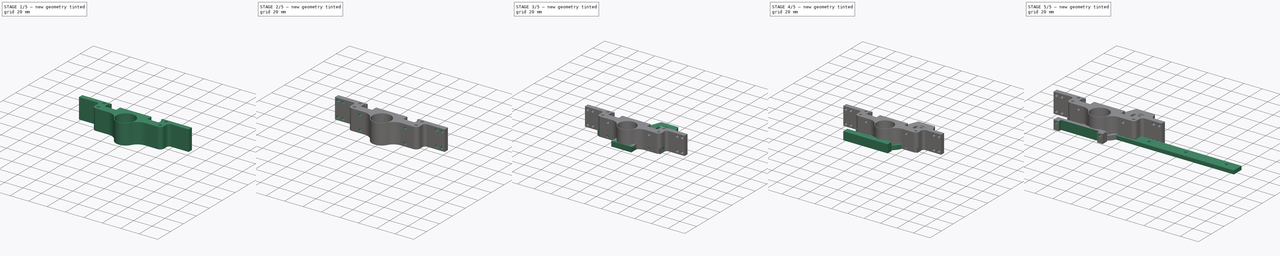
[diagram: build sequence overview — one tinted view per stage of 5, left to right]
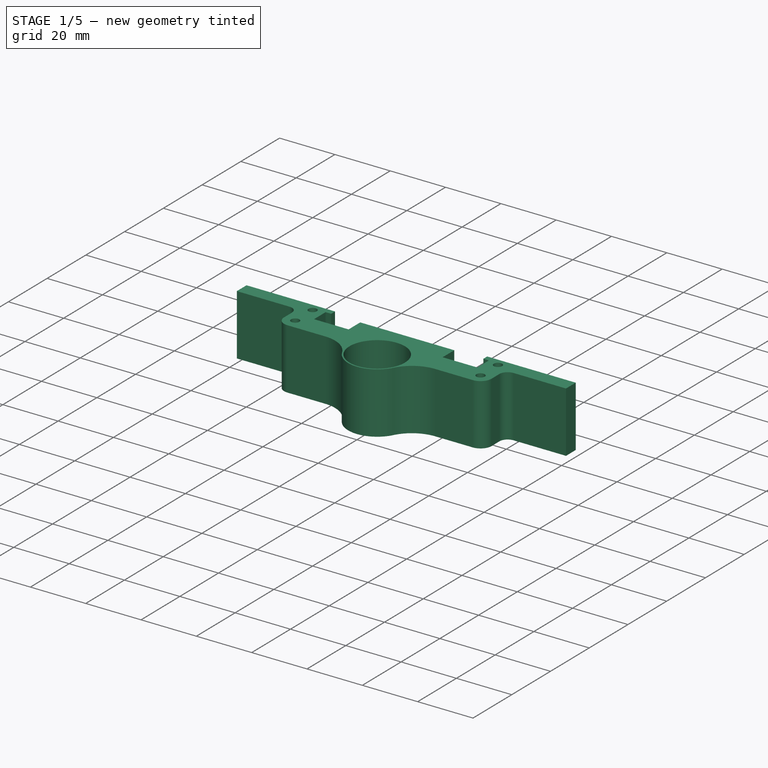
[diagram: stage 1 of 5 — iso view after this stage's code; geometry added in this stage tinted green]
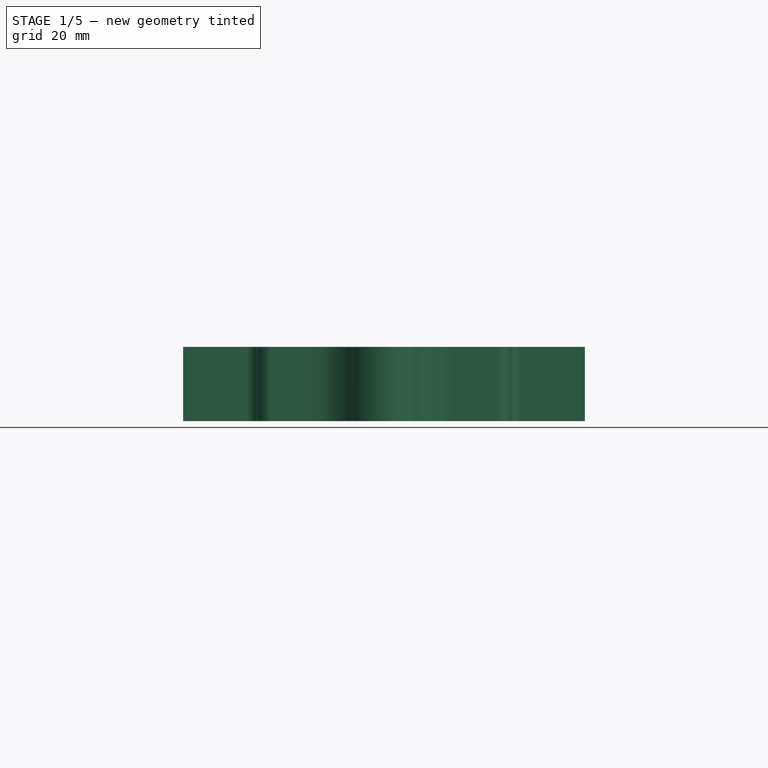
[diagram: stage 1 of 5 — front view after this stage's code; geometry added in this stage tinted green]
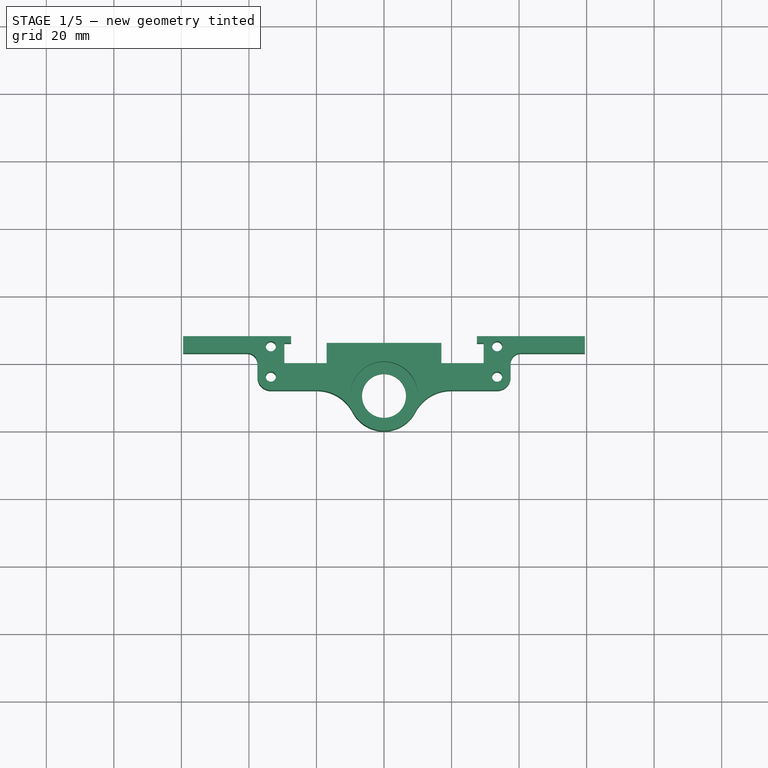
[diagram: stage 1 of 5 — top view after this stage's code; geometry added in this stage tinted green]
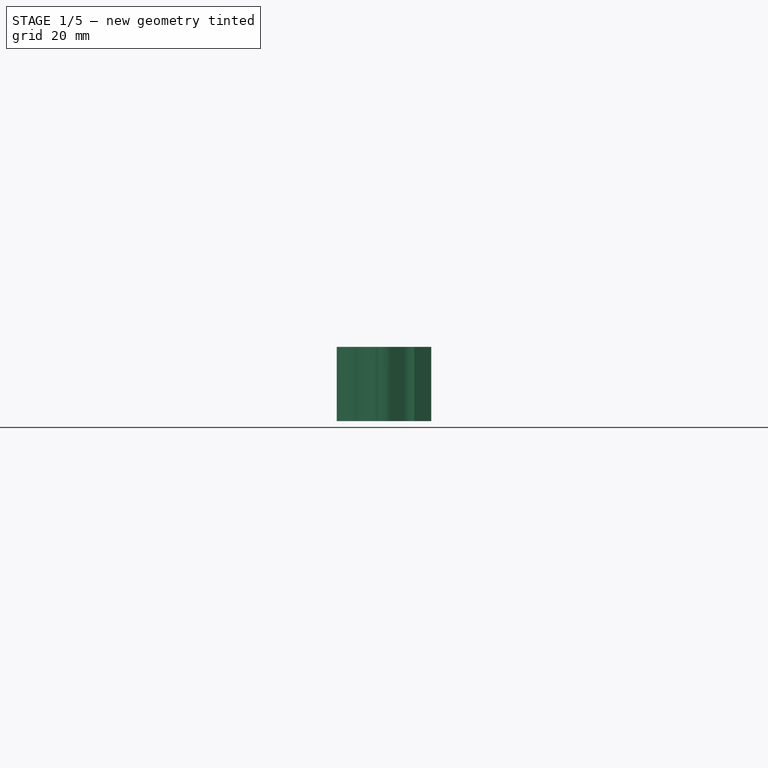
[diagram: stage 1 of 5 — right view after this stage's code; geometry added in this stage tinted green]
FCSTD DOCUMENT  (FreeCAD 0.20R29177 +426 (Git))
Label: MotorMountNew
License: All rights reserved
LicenseURL: http://en.wikipedia.org/wiki/All_rights_reserved
objects: Sketcher::SketchObject×22, PartDesign::Pocket×12, PartDesign::Pad×7, PartDesign::Body×6, Spreadsheet::Sheet×3, PartDesign::Line×2, PartDesign::Point×1, PartDesign::Fillet×1, PartDesign::FeatureBase×1
note: 72 computed .brp shape members not serialized (recipe doc carries the construction recipe); baked Part::Feature solids carry a one-line shape summary decoded from their .brp

FEATURE [PartDesign::Body] Body  label="BodyOldDCMotorCap"
  Group = -> [Sketch,Pad,Sketch001,Pocket,Sketch002,Pad001,Sketch003,Pocket001,Sketch004,Pocket002,Sketch006,Pocket003]
  Origin = -> Origin
  Tip = -> Pocket003
FEATURE [Spreadsheet::Sheet] Spreadsheet002
  cells = A2=innerMaxWidth; B2(innerMaxWidth)=59; D2=supportBarGap; E2=6; A3=topEdgeGrapWidth; B3(topEdgeGrapWidth)=2; A4=topVertGrapH; B4(topVertGrapH)=2; A5=topVGrap; B5(topVGrap)=6; A6=topGrapW; B6(topGrapW)=10; A7=topBottomHorW; B7(topBottomHorW)=6.5; A8=sideH; B8(sideH)==B4 + B6 + E2 + 10; C8=calculated, topVertGapH+topVgap+supportbarGap; D8=was +8, now +2; A9=topClamGap; B9(topClamGap)=12.5; C9=13 is too lose; A10=toLowerGearDist; B10(toLowerGearDist)=15.5; C10=13 is too big, shrink to 7; D10=7 too short, 8.5; E10=was 8.5 for v1, now 10, now 12, now 14 now 17, now 16 (a bit lose, try 15) 15.5; A11=bearingR; B11(bearingR)=7.56; A12=bottomToScrew; B12(bottomToScrew)==6 + 7 + 5; A13=totalPad; B13(totalPad)==B12 + 4; A14=screwR; B14(screwR)=2; A15=screwRTight; B15(screwRTight)=1.4; A16=screwToSide; B16(screwToSide)=3; A17=screwFront4W; B17(screwFront4W)==B2 / 2 + (B6 - B3) / 2; A18=middleToTop; B18(middleToTop)==B4 + B5; A19=screwFront4Top; B19(screwFront4Top)==B18 - B16; A20=bottomRemoveY; B20(bottomRemoveY)=7; C20(bottomRemoveX)=12; D20(bottomRemoteXW)=50; A21=bottomHeight; B21(bottomHeight)==B8 - B4 - B5; A22=screwFront4BottomY; B22(screwFront4BottomY)==B20 - B16; A24=totalWidth; B24(totalWidth)==B2 + (B6 - B3) * 2; A26=bearingInnerR; B26(bearingInnerR)=6.5; A29=engineShaftRW; B29(engineShaftRW)=13.25; A30=engineShaftRH; B30(engineShaftRH)=24.88; A31=engineShaftRHTo0; B31(engineShaftRHTo0)==B30 + B5; A34=frontScrewToSideX; B34(frontScrewToSideX)==B24 / 2 - B17; A36=toLowerGearCenterFromOrigin; B36(toLowerGearCenterFromOrigin)==B10 - B5
FEATURE [Sketcher::SketchObject] Sketch007
  FullyConstrained = true
  MapMode = 5
  Support = -> [XY_Plane002]
  expr: Constraints[12] = Spreadsheet002.topEdgeGrapWidth
  expr: Constraints[13] = Spreadsheet002.topEdgeGrapWidth
  expr: Constraints[18] = Spreadsheet002.topVertGrapH
  expr: Constraints[19] = Spreadsheet002.topVertGrapH
  expr: Constraints[24] = Spreadsheet002.topGrapW
  expr: Constraints[25] = Spreadsheet002.topGrapW
  expr: Constraints[2] = Spreadsheet002.innerMaxWidth / 2
  expr: Constraints[30] = Spreadsheet002.topClamGap
  expr: Constraints[31] = Spreadsheet002.topClamGap
  expr: Constraints[38] = Spreadsheet002.topVGrap
  expr: Constraints[39] = Spreadsheet002.topVGrap
  expr: Constraints[3] = Spreadsheet002.innerMaxWidth
  expr: Constraints[6] = Spreadsheet002.topVGrap
  expr: Constraints[71] = Spreadsheet002.screwFront4W
  expr: Constraints[72] = Spreadsheet002.screwFront4Top
  expr: Constraints[76] = Spreadsheet.motorScrewHoleR
  expr: Constraints[77] = Spreadsheet002.screwFront4BottomY
  expr: Constraints[78] = Spreadsheet002.screwFront4W
  expr: Constraints[79] = Spreadsheet.connectorExtra
  expr: Constraints[7] = Spreadsheet002.topVGrap
  expr: Constraints[80] = Spreadsheet.connectorWallThickness
  expr: Constraints[81] = Spreadsheet002.topGrapW
  expr: Constraints[86] = Spreadsheet002.toLowerGearCenterFromOrigin
  expr: Constraints[87] = Spreadsheet002.sideH - Spreadsheet002.toLowerGearCenterFromOrigin - Spreadsheet002.topVGrap - Spreadsheet002.topVertGrapH
  sketch-geometry (34):
    g0: LineSegment StartX=29.5 StartY=0 StartZ=0 EndX=29.5 EndY=6 EndZ=0
    g1: LineSegment StartX=-29.5 StartY=0 StartZ=0 EndX=-29.5 EndY=6 EndZ=0
    g2: LineSegment StartX=29.5 StartY=6 StartZ=0 EndX=27.5 EndY=6 EndZ=0
    g3: LineSegment StartX=-29.5 StartY=6 StartZ=0 EndX=-27.5 EndY=6 EndZ=0
    g4: LineSegment StartX=27.5 StartY=6 StartZ=0 EndX=27.5 EndY=8 EndZ=0
    g5: LineSegment StartX=-27.5 StartY=6 StartZ=0 EndX=-27.5 EndY=8 EndZ=0
    g6: LineSegment StartX=27.5 StartY=8 StartZ=0 EndX=37.5 EndY=8 EndZ=0
    g7: LineSegment StartX=-27.5 StartY=8 StartZ=0 EndX=-37.5 EndY=8 EndZ=0
    g8: LineSegment StartX=29.5 StartY=0 StartZ=0 EndX=17 EndY=0 EndZ=0
    g9: LineSegment StartX=-29.5 StartY=0 StartZ=0 EndX=-17 EndY=0 EndZ=0
    g10: LineSegment StartX=17 StartY=6 StartZ=0 EndX=-17 EndY=6 EndZ=0
    g11: LineSegment StartX=17 StartY=0 StartZ=0 EndX=17 EndY=6 EndZ=0
    g12: LineSegment StartX=-17 StartY=0 StartZ=0 EndX=-17 EndY=6 EndZ=0
    g13: LineSegment StartX=-37.5 StartY=8 StartZ=0 EndX=-59.5 EndY=8 EndZ=0
    g14: LineSegment StartX=-59.5 StartY=8 StartZ=0 EndX=-59.5 EndY=3 EndZ=0
    g15: LineSegment StartX=-59.5 StartY=3 StartZ=0 EndX=-40.5 EndY=3 EndZ=0
    g16: LineSegment StartX=-37.5 StartY=4e-16 StartZ=0 EndX=-37.5 EndY=-4 EndZ=0
    g17: LineSegment StartX=-33.5 StartY=-8 StartZ=0 EndX=-19.8997 EndY=-8 EndZ=0
    g18: LineSegment StartX=37.5 StartY=8 StartZ=0 EndX=59.5 EndY=8 EndZ=0
    g19: LineSegment StartX=59.5 StartY=8 StartZ=0 EndX=59.5 EndY=3 EndZ=0
    g20: LineSegment StartX=59.5 StartY=3 StartZ=0 EndX=40.5 EndY=3 EndZ=0
    g21: LineSegment StartX=37.5 StartY=7e-16 StartZ=0 EndX=37.5 EndY=-4 EndZ=0
    g22: LineSegment StartX=33.5 StartY=-8 StartZ=0 EndX=19.8997 EndY=-8 EndZ=0
    g23: ArcOfCircle CenterX=-19.8997 CenterY=-20 CenterZ=0 NormalX=0 NormalY=0 NormalZ=1 AngleXU=0 Radius=12 StartAngle=0.485518 EndAngle=1.5708
    g24: ArcOfCircle CenterX=19.8997 CenterY=-20 CenterZ=0 NormalX=0 NormalY=0 NormalZ=1 AngleXU=0 Radius=12 StartAngle=1.5708 EndAngle=2.65607
    g25: ArcOfCircle CenterX=40.5 CenterY=4e-16 CenterZ=0 NormalX=0 NormalY=0 NormalZ=1 AngleXU=0 Radius=3 StartAngle=1.5708 EndAngle=3.14159
    g26: ArcOfCircle CenterX=-40.5 CenterY=4e-16 CenterZ=0 NormalX=0 NormalY=0 NormalZ=1 AngleXU=0 Radius=3 StartAngle=0 EndAngle=1.5708
    g27: ArcOfCircle CenterX=-33.5 CenterY=-4 CenterZ=0 NormalX=0 NormalY=0 NormalZ=1 AngleXU=0 Radius=4 StartAngle=3.14159 EndAngle=4.71239
    g28: ArcOfCircle CenterX=33.5 CenterY=-4 CenterZ=0 NormalX=0 NormalY=0 NormalZ=1 AngleXU=0 Radius=4 StartAngle=4.71239 EndAngle=6.28319
    g29: Circle CenterX=-33.5 CenterY=5 CenterZ=0 NormalX=0 NormalY=0 NormalZ=1 AngleXU=0 Radius=1.5
    g30: Circle CenterX=-33.5 CenterY=-4 CenterZ=0 NormalX=0 NormalY=0 NormalZ=1 AngleXU=0 Radius=1.5
    g31: Circle CenterX=33.5 CenterY=-4 CenterZ=0 NormalX=0 NormalY=0 NormalZ=1 AngleXU=0 Radius=1.5
    g32: Circle CenterX=33.5 CenterY=5 CenterZ=0 NormalX=0 NormalY=0 NormalZ=1 AngleXU=0 Radius=1.5
    g33: ArcOfCircle CenterX=0 CenterY=-9.5 CenterZ=0 NormalX=0 NormalY=0 NormalZ=1 AngleXU=0 Radius=10.5 StartAngle=3.62711 EndAngle=5.79767
  constraints (91):
    c: PointOnObject(g1,g-1)
    c: PointOnObject(g0,g-1)
    c: DistanceX(g-1,g0) = 29.5
    c: DistanceX(g1,g0) = 59
    c: Vertical(g0)
    c: Vertical(g1)
    c: DistanceY(g0,g0) = 6
    c: DistanceY(g1,g1) = 6
    c: Coincident(g2,g0)
    c: Horizontal(g2)
    c: Coincident(g3,g1)
    c: Horizontal(g3)
    c: DistanceX(g2,g2) = 2
    c: DistanceX(g3,g3) = 2
    c: Coincident(g4,g2)
    c: Vertical(g4)
    c: Coincident(g5,g3)
    c: Vertical(g5)
    c: DistanceY(g4,g4) = 2
    c: DistanceY(g5,g5) = 2
    c: Coincident(g6,g4)
    c: Horizontal(g6)
    c: Coincident(g7,g5)
    c: Horizontal(g7)
    c: DistanceX(g6,g6) = 10
    c: DistanceX(g7,g7) = 10
    c: Coincident(g8,g0)
    c: Coincident(g9,g1)
    c: PointOnObject(g8,g-1)
    c: PointOnObject(g9,g-1)
    c: DistanceX(g8,g8) = 12.5
    c: DistanceX(g9,g9) = 12.5
    c: Coincident(g11,g8)
    c: Vertical(g11)
    c: Coincident(g12,g9)
    c: Vertical(g12)
    c: Coincident(g10,g12)
    c: Coincident(g10,g11)
    c: DistanceY(g11,g11) = 6
    c: DistanceY(g12,g12) = 6
    c: Coincident(g13,g7)
    c: Horizontal(g13)
    c: Coincident(g14,g13)
    c: Vertical(g14)
    c: Coincident(g15,g14)
    c: Horizontal(g15)
    c: Vertical(g16)
    c: Horizontal(g17)
    c: Coincident(g18,g6)
    c: Coincident(g19,g18)
    c: Vertical(g19)
    c: Coincident(g20,g19)
    c: Horizontal(g20)
    c: Horizontal(g22)
    c: Symmetric(g18,g13,g-2)
    c: Tangent(g17,g23) = 1.5708
    c: Tangent(g22,g24) = -1.5708
    c: Tangent(g21,g25) = -1.5708
    c: Tangent(g20,g25) = -1.5708
    c: Tangent(g15,g26) = 1.5708
    c: Tangent(g16,g26) = 1.5708
    c: Tangent(g17,g27) = -1.5708
    c: Tangent(g16,g27) = -1.5708
    c: Tangent(g22,g28) = 1.5708
    c: Tangent(g21,g28) = 1.5708
    c: Vertical(g21)
    c: Symmetric(g28,g27,g-2)
    c: Symmetric(g24,g23,g-2)
    c: Symmetric(g25,g26,g-2)
    c: Symmetric(g32,g29,g-2)
    c: Symmetric(g31,g30,g-2)
    c: DistanceX(g-1,g32) = 33.5
    c: DistanceY(g-1,g32) = 5
    c: Equal(g29,g30)
    c: Equal(g29,g32)
    c: Equal(g29,g31)
    c: Radius(g29) = 1.5
    c: DistanceY(g31,g-1) = 4
    c: DistanceX(g-1,g31) = 33.5
    c: DistanceX(g13,g13) = 22
    c: DistanceY(g14,g14) = 5
    c: DistanceX(g16,g5) = 10
    c: Coincident(g27,g30)
    c: PointOnObject(g16,g-1)
    c: PointOnObject(g33,g-2)
    c: Coincident(g23,g33)
    c: DistanceY(g33,g-1) = 9.5
    c: Radius(g33) = 10.5
    c: Tangent(g24,g33) = 1.5708
    c: Equal(g24,g23)
    c: Radius(g24) = 12
FEATURE [PartDesign::Pad] Pad003
  Direction = (0,0,1)
  Length = 22
  Length2 = 10
  Profile = -> Sketch007
  ReferenceAxis = -> Sketch007 [N_Axis]
  Type = 0
  expr: Length = Spreadsheet002.totalPad
FEATURE [Sketcher::SketchObject] Sketch008
  FullyConstrained = true
  MapMode = 5
  Support = -> [XY_Plane002]
  expr: Constraints[1] = Spreadsheet002.bearingR
  expr: Constraints[2] = Spreadsheet002.toLowerGearCenterFromOrigin
  sketch-geometry (1):
    g0: Circle CenterX=0 CenterY=-9.5 CenterZ=0 NormalX=0 NormalY=0 NormalZ=1 AngleXU=0 Radius=7.56
  constraints (3):
    c: PointOnObject(g0,g-2)
    c: Radius(g0) = 7.56
    c: DistanceY(g0,g-1) = 9.5
FEATURE [PartDesign::Pocket] Pocket004  label="Pocket004OuerRingBore"
  BaseFeature = -> Pad003
  Direction = (0,0,-1)
  Length = 4.5
  Length2 = 5
  Profile = -> Sketch008
  ReferenceAxis = -> Sketch008 [N_Axis]
  Reversed = true
  Type = 0
  expr: Length = 4.5
FEATURE [Sketcher::SketchObject] Sketch010  label="Sketch010RemoveExtra"
  FullyConstrained = true
  MapMode = 5
  Support = -> [XY_Plane002]
  expr: Constraints[18] = Spreadsheet002.bottomHeight
  expr: Constraints[20] = Spreadsheet002.bottomRemoveX
  expr: Constraints[21] = Spreadsheet002.bottomRemoveY
  expr: Constraints[22] = Spreadsheet002.bottomRemoveX
  expr: Constraints[23] = Spreadsheet002.bottomRemoteXW
  sketch-geometry (8):
    g0: LineSegment StartX=-50 StartY=-7 StartZ=0 EndX=-12 EndY=-7 EndZ=0
    g1: LineSegment StartX=-12 StartY=-7 StartZ=0 EndX=-12 EndY=-20 EndZ=0
    g2: LineSegment StartX=-12 StartY=-20 StartZ=0 EndX=-50 EndY=-20 EndZ=0
    g3: LineSegment StartX=-50 StartY=-20 StartZ=0 EndX=-50 EndY=-7 EndZ=0
    g4: LineSegment StartX=12 StartY=-7 StartZ=0 EndX=50 EndY=-7 EndZ=0
    g5: LineSegment StartX=50 StartY=-7 StartZ=0 EndX=50 EndY=-20 EndZ=0
    g6: LineSegment StartX=50 StartY=-20 StartZ=0 EndX=12 EndY=-20 EndZ=0
    g7: LineSegment StartX=12 StartY=-20 StartZ=0 EndX=12 EndY=-7 EndZ=0
  constraints (24):
    c: Coincident(g0,g1)
    c: Coincident(g1,g2)
    c: Coincident(g2,g3)
    c: Coincident(g3,g0)
    c: Horizontal(g0)
    c: Horizontal(g2)
    c: Vertical(g1)
    c: Vertical(g3)
    c: Coincident(g4,g5)
    c: Coincident(g5,g6)
    c: Coincident(g6,g7)
    c: Coincident(g7,g4)
    c: Horizontal(g4)
    c: Horizontal(g6)
    c: Vertical(g5)
    c: Vertical(g7)
    c: Equal(g3,g5)
    c: Equal(g4,g2)
    c: DistanceY(g6,g-1) = 20
    c: DistanceY(g6,g1) = 0
    c: DistanceX(g-1,g6) = 12
    c: DistanceY(g4,g-1) = 7
    c: DistanceX(g1,g-1) = 12
    c: DistanceX(g-1,g5) = 50
FEATURE [PartDesign::Point] DatumPoint
  AttacherType = Attacher::AttachEnginePoint
  MapMode = 36
  Placement = pos=(-9e-16,-9.5,0) rot=(1,0,0;1.5708rad)
  Support = -> [Sketch008]
FEATURE [Sketcher::SketchObject] Sketch009  label="Sketch009InnerRingbore"
  ExternalGeometry = -> [Pocket004,DatumPoint]
  FullyConstrained = true
  MapMode = 5
  Support = -> [XY_Plane002]
  expr: Constraints[0] = Spreadsheet002.bearingInnerR
  sketch-geometry (1):
    g0: Circle CenterX=-9e-16 CenterY=-9.5 CenterZ=0 NormalX=0 NormalY=0 NormalZ=1 AngleXU=0 Radius=6.5
  constraints (2):
    c: Radius(g0) = 6.5
    c: Coincident(g0,g-4)
FEATURE [PartDesign::Pocket] Pocket005  label="Pocket005InnerRing"
  BaseFeature = -> Pocket004
  Direction = (0,0,-1)
  Length = 5
  Length2 = 5
  Profile = -> Sketch009
  ReferenceAxis = -> Sketch009 [N_Axis]
  Reversed = true
  Type = 1
FEATURE [Sketcher::SketchObject] Sketch011  label="Sketch011Screws"
  FullyConstrained = false
  MapMode = 5
  Placement = pos=(0,0,0) rot=(1,0,0;1.5708rad)
  Support = -> [XZ_Plane]
  expr: Constraints[10] = Spreadsheet002.screwToSide
  expr: Constraints[2] = Spreadsheet002.screwRTight
  expr: Constraints[3] = Spreadsheet002.screwRTight
  expr: Constraints[4] = Spreadsheet002.bottomToScrew
  expr: Constraints[5] = Spreadsheet002.innerMaxWidth / 2 - Spreadsheet001.mountOutsideToScrewH
  expr: Constraints[6] = Spreadsheet002.innerMaxWidth / 2 - Spreadsheet001.mountOutsideToScrewH
  sketch-geometry (6):
    g0: LineSegment StartX=-24.5 StartY=18 StartZ=0 EndX=32.3522 EndY=18 EndZ=0
    g1: Circle CenterX=-24.5 CenterY=18 CenterZ=0 NormalX=0 NormalY=0 NormalZ=1 AngleXU=0 Radius=1.4
    g2: Circle CenterX=24.5 CenterY=18 CenterZ=0 NormalX=0 NormalY=0 NormalZ=1 AngleXU=0 Radius=1.4
    g3: LineSegment StartX=-24.5 StartY=18 StartZ=0 EndX=-24.5 EndY=3 EndZ=0
    g4: Circle CenterX=-24.5 CenterY=3 CenterZ=0 NormalX=0 NormalY=0 NormalZ=1 AngleXU=0 Radius=1.4
    g5: Circle CenterX=24.5 CenterY=3 CenterZ=0 NormalX=0 NormalY=0 NormalZ=1 AngleXU=0 Radius=1.4
  constraints (15):
    c: Horizontal(g0)
    c: PointOnObject(g2,g0)
    c: Radius(g1) = 1.4
    c: Radius(g2) = 1.4
    c: DistanceY(g-1,g0) = 18
    c: DistanceX(g-1,g2) = 24.5
    c: DistanceX(g0,g-1) = 24.5
    c: Coincident(g1,g0)
    c: Coincident(g3,g1)
    c: Vertical(g3)
    c: DistanceY(g-1,g3) = 3
    c: Coincident(g4,g3)
    c: Symmetric(g5,g4,g-2)
    c: Equal(g4,g5)
    c: Equal(g5,g1)
FEATURE [Sketcher::SketchObject] Sketch012  label="Sketch012FrontScrews"
  FullyConstrained = true
  MapMode = 5
  Support = -> [XY_Plane002]
  expr: Constraints[0] = Spreadsheet002.screwFront4W
  expr: Constraints[10] = Spreadsheet002.screwFront4BottomY
  expr: Constraints[11] = Spreadsheet002.screwFront4BottomY
  expr: Constraints[1] = Spreadsheet002.screwFront4W
  expr: Constraints[2] = Spreadsheet002.screwFront4W
  expr: Constraints[3] = Spreadsheet002.screwFront4W
  expr: Constraints[4] = Spreadsheet002.screwRTight
  expr: Constraints[5] = Spreadsheet002.screwRTight
  expr: Constraints[6] = Spreadsheet002.screwRTight
  expr: Constraints[7] = Spreadsheet002.screwRTight
  expr: Constraints[8] = Spreadsheet002.screwFront4Top
  expr: Constraints[9] = Spreadsheet002.screwFront4Top
  sketch-geometry (4):
    g0: Circle CenterX=-33.5 CenterY=5 CenterZ=0 NormalX=0 NormalY=0 NormalZ=1 AngleXU=0 Radius=1.4
    g1: Circle CenterX=33.5 CenterY=5 CenterZ=0 NormalX=0 NormalY=0 NormalZ=1 AngleXU=0 Radius=1.4
    g2: Circle CenterX=33.5 CenterY=-4 CenterZ=0 NormalX=0 NormalY=0 NormalZ=1 AngleXU=0 Radius=1.4
    g3: Circle CenterX=-33.5 CenterY=-4 CenterZ=0 NormalX=0 NormalY=0 NormalZ=1 AngleXU=0 Radius=1.4
  constraints (12):
    c: DistanceX(g0,g-1) = 33.5
    c: DistanceX(g-1,g1) = 33.5
    c: DistanceX(g-1,g2) = 33.5
    c: DistanceX(g3,g-1) = 33.5
    c: Radius(g2) = 1.4
    c: Radius(g3) = 1.4
    c: Radius(g0) = 1.4
    c: Radius(g1) = 1.4
    c: DistanceY(g-1,g0) = 5
    c: DistanceY(g-1,g1) = 5
    c: DistanceY(g3,g-1) = 4
    c: DistanceY(g2,g-1) = 4
FEATURE [Sketcher::SketchObject] Sketch013  label="Sketch013RearBigHole"
  AttachmentOffset = pos=(0,0,10) rot=(0,0,1;0rad)
  ExternalGeometry = -> [DatumPoint]
  FullyConstrained = true
  MapMode = 5
  Placement = pos=(0,0,10) rot=(0,0,1;0rad)
  Support = -> [XY_Plane002]
  sketch-geometry (1):
    g0: Circle CenterX=0 CenterY=-9.5 CenterZ=0 NormalX=0 NormalY=0 NormalZ=1 AngleXU=0 Radius=10
  constraints (2):
    c: Coincident(g0,g-3)
    c: Radius(g0) = 10
FEATURE [PartDesign::Pocket] Pocket009  label="Pocket009RearBigHole"
  BaseFeature = -> Pocket005
  Direction = (0,0,-1)
  Length = 12
  Length2 = 5
  Profile = -> Sketch013
  ReferenceAxis = -> Sketch013 [N_Axis]
  Reversed = true
  Type = 1
  expr: Length = Spreadsheet002.totalPad - 10
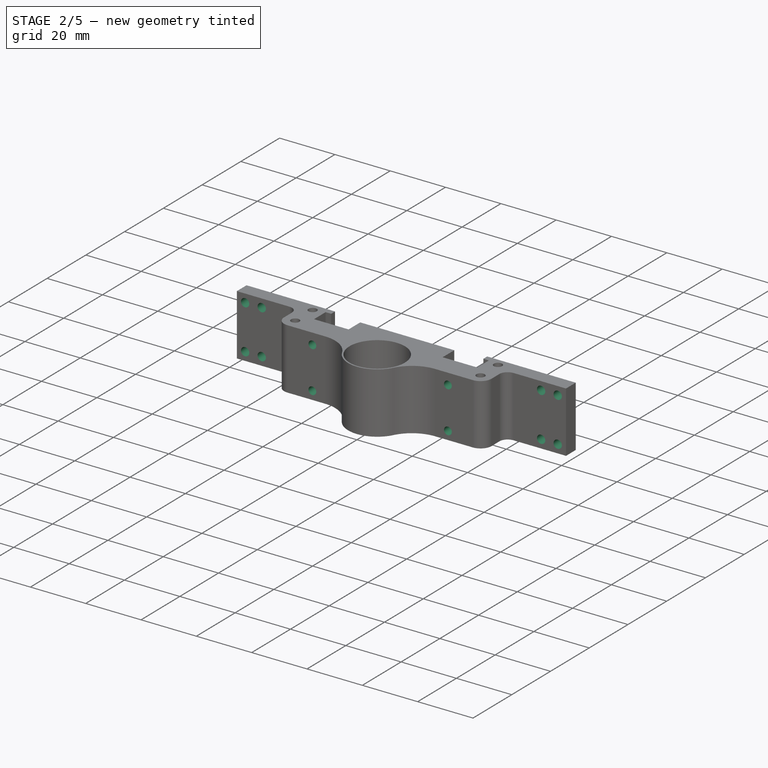
[diagram: stage 2 of 5 — iso view after this stage's code; geometry added in this stage tinted green]
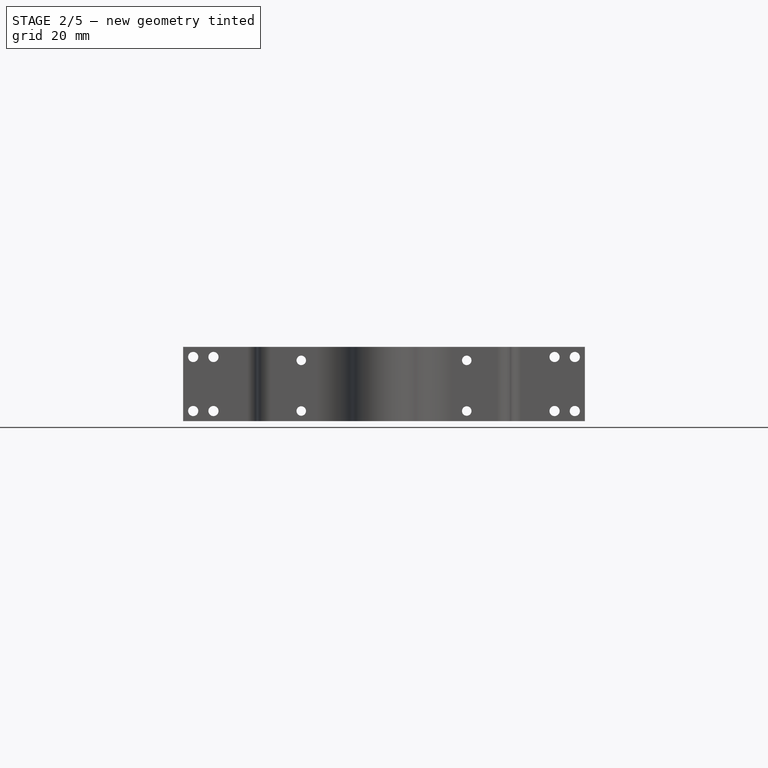
[diagram: stage 2 of 5 — front view after this stage's code; geometry added in this stage tinted green]
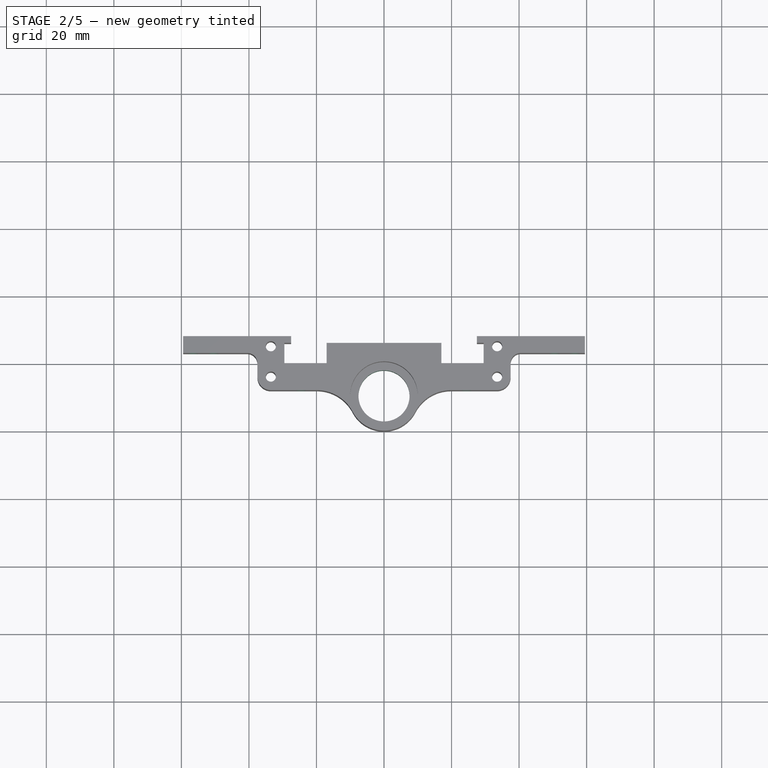
[diagram: stage 2 of 5 — top view after this stage's code; geometry added in this stage tinted green]
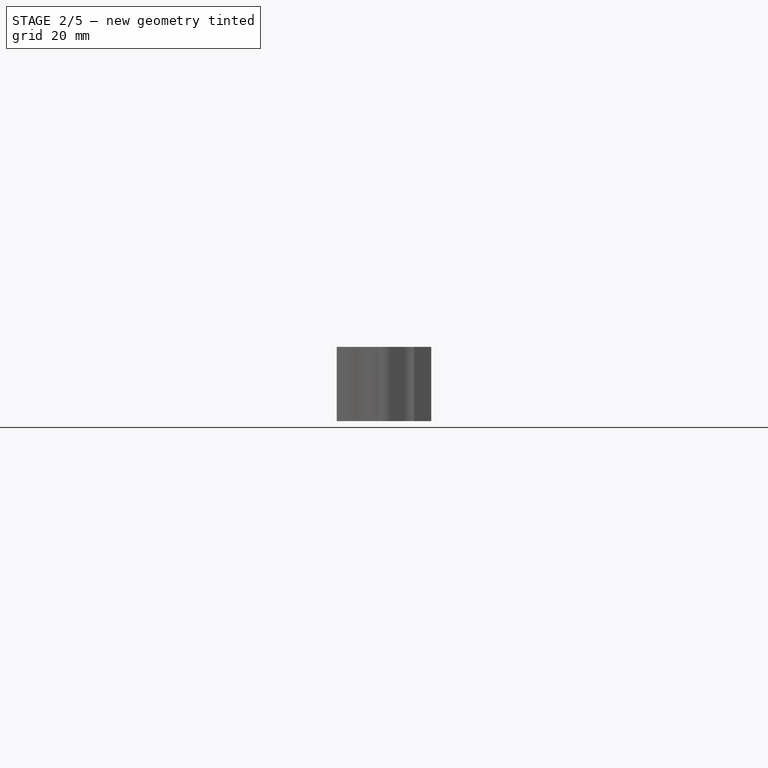
[diagram: stage 2 of 5 — right view after this stage's code; geometry added in this stage tinted green]
FEATURE [Sketcher::SketchObject] Sketch014  label="Sketch014Test"
  AttachmentOffset = pos=(0,0,-11) rot=(0,0,1;0rad)
  FullyConstrained = false
  MapMode = 5
  Placement = pos=(0,11,2.4e-15) rot=(1,0,0;1.5708rad)
  Support = -> [XZ_Plane002]
  sketch-geometry (4):
    g0: LineSegment StartX=-44.4887 StartY=36.2277 StartZ=0 EndX=45.8764 EndY=36.2277 EndZ=0
    g1: LineSegment StartX=45.8764 StartY=36.2277 StartZ=0 EndX=45.8764 EndY=4.01142 EndZ=0
    g2: LineSegment StartX=45.8764 StartY=4.01142 StartZ=0 EndX=-44.4887 EndY=4.01142 EndZ=0
    g3: LineSegment StartX=-44.4887 StartY=4.01142 StartZ=0 EndX=-44.4887 EndY=36.2277 EndZ=0
  constraints (8):
    c: Coincident(g0,g1)
    c: Coincident(g1,g2)
    c: Coincident(g2,g3)
    c: Coincident(g3,g0)
    c: Horizontal(g0)
    c: Horizontal(g2)
    c: Vertical(g1)
    c: Vertical(g3)
FEATURE [PartDesign::Pocket] Pocket010  label="Pocket010VertScrew"
  BaseFeature = -> Pocket009
  Direction = (0,1,2e-16)
  Length = 20
  Length2 = 5
  Profile = -> Sketch011
  ReferenceAxis = -> Sketch011 [N_Axis]
  Reversed = true
  Type = 0
  expr: Length = Spreadsheet002.bottomHeight
FEATURE [PartDesign::Body] Body004  label="Body004Connector"
  Group = -> [Sketch018,Pad005,Fillet001]
  Origin = -> Origin004
  Tip = -> Fillet001
FEATURE [Sketcher::SketchObject] Sketch020  label="Sketch020BearingHole"
  FullyConstrained = true
  MapMode = 5
  Support = -> [XY_Plane006]
  expr: Constraints[1] = Spreadsheet002.bearingR
  expr: Constraints[2] = Spreadsheet002.toLowerGearCenterFromOrigin
  sketch-geometry (1):
    g0: Circle CenterX=0 CenterY=-9.5 CenterZ=0 NormalX=0 NormalY=0 NormalZ=1 AngleXU=0 Radius=7.56
  constraints (3):
    c: PointOnObject(g0,g-2)
    c: Radius(g0) = 7.56
    c: DistanceY(g0,g-1) = 9.5
FEATURE [Sketcher::SketchObject] Sketch021
  FullyConstrained = true
  MapMode = 5
  Support = -> [XY_Plane006]
  expr: Constraints[1] = Spreadsheet002.toLowerGearCenterFromOrigin
  expr: Constraints[2] = Spreadsheet002.bearingR
  expr: Constraints[4] = Spreadsheet002.bearingInnerR
  sketch-geometry (2):
    g0: Circle CenterX=0 CenterY=-9.5 CenterZ=0 NormalX=0 NormalY=0 NormalZ=1 AngleXU=0 Radius=7.56
    g1: Circle CenterX=0 CenterY=-9.5 CenterZ=0 NormalX=0 NormalY=0 NormalZ=1 AngleXU=0 Radius=6.5
  constraints (5):
    c: PointOnObject(g0,g-2)
    c: DistanceY(g0,g-1) = 9.5
    c: Radius(g0) = 7.56
    c: Coincident(g1,g0)
    c: Radius(g1) = 6.5
FEATURE [Sketcher::SketchObject] Sketch022  label="Sketch022edgeConnectorHoles"
  FullyConstrained = true
  MapMode = 5
  Placement = pos=(0,0,0) rot=(1,0,0;1.5708rad)
  Support = -> [XZ_Plane002]
  expr: Constraints[13] = Spreadsheet.connectorToScrewOuter
  expr: Constraints[14] = Spreadsheet.connectorScrewHDist
  expr: Constraints[21] = Spreadsheet.motorScrewHoleR
  expr: Constraints[22] = Spreadsheet002.screwToSide
  expr: Constraints[27] = Spreadsheet.edgeConnectorScrewVDist
  sketch-geometry (12):
    g0: Circle CenterX=-56.5 CenterY=19 CenterZ=0 NormalX=0 NormalY=0 NormalZ=1 AngleXU=0 Radius=1.5
    g1: Circle CenterX=-50.5 CenterY=19 CenterZ=0 NormalX=0 NormalY=0 NormalZ=1 AngleXU=0 Radius=1.5
    g2: Circle CenterX=-56.5 CenterY=3 CenterZ=0 NormalX=0 NormalY=0 NormalZ=1 AngleXU=0 Radius=1.5
    g3: Circle CenterX=-50.5 CenterY=3 CenterZ=0 NormalX=0 NormalY=0 NormalZ=1 AngleXU=0 Radius=1.5
    g4: Circle CenterX=50.5 CenterY=19 CenterZ=0 NormalX=0 NormalY=0 NormalZ=1 AngleXU=0 Radius=1.5
    g5: Circle CenterX=56.5 CenterY=19 CenterZ=0 NormalX=0 NormalY=0 NormalZ=1 AngleXU=0 Radius=1.5
    g6: Circle CenterX=50.5 CenterY=3 CenterZ=0 NormalX=0 NormalY=0 NormalZ=1 AngleXU=0 Radius=1.5
    g7: Circle CenterX=56.5 CenterY=3 CenterZ=0 NormalX=0 NormalY=0 NormalZ=1 AngleXU=0 Radius=1.5
    g8: LineSegment StartX=-56.5 StartY=19 StartZ=0 EndX=56.5 EndY=19 EndZ=0
    g9: LineSegment StartX=-56.5 StartY=3 StartZ=0 EndX=56.5 EndY=3 EndZ=0
    g10: LineSegment StartX=-56.5 StartY=19 StartZ=0 EndX=-56.5 EndY=3 EndZ=0
    g11: LineSegment StartX=-50.5 StartY=19 StartZ=0 EndX=-50.5 EndY=3 EndZ=0
  constraints (28):
    c: Symmetric(g5,g0,g-2)
    c: Symmetric(g7,g2,g-2)
    c: Symmetric(g3,g6,g-2)
    c: Coincident(g8,g0)
    c: Coincident(g8,g5)
    c: Tangent(g1,g8) = -1.5708
    c: Symmetric(g4,g1,g-2)
    c: Coincident(g9,g2)
    c: Coincident(g9,g7)
    c: PointOnObject(g3,g9)
    c: Coincident(g10,g0)
    c: Coincident(g10,g2)
    c: Vertical(g10)
    c: DistanceX(g0,g-1) = 56.5
    c: DistanceX(g0,g1) = 6
    c: Coincident(g11,g1)
    c: Coincident(g11,g3)
    c: Vertical(g11)
    c: Equal(g0,g2)
    c: Equal(g0,g1)
    c: Equal(g0,g3)
    c: Radius(g0) = 1.5
    c: DistanceY(g-1,g2) = 3
    c: Equal(g5,g4)
    c: Equal(g4,g6)
    c: Equal(g6,g7)
    c: Equal(g7,g1)
    c: DistanceY(g10,g10) = 16
FEATURE [PartDesign::Pocket] Pocket016
  BaseFeature = -> Pocket010
  Direction = (0,1,2e-16)
  Length = 5
  Length2 = 5
  Midplane = true
  Profile = -> Sketch022
  ReferenceAxis = -> Sketch022 [N_Axis]
  Type = 1
FEATURE [PartDesign::Body] Body002  label="Body002BottomSupport"
  Group = -> [Sketch007,Pad003,Sketch008,Pocket004,Sketch009,Pocket005,Sketch010,DatumPoint,Sketch011,Sketch012,Sketch013,Pocket009,Sketch014,Pocket010,Sketch022,Pocket016]
  Origin = -> Origin002
  Tip = -> Pocket016
FEATURE [PartDesign::FeatureBase] Clone
  BaseFeature = -> Body002
FEATURE [PartDesign::Pocket] Pocket015
  BaseFeature = -> Clone
  Direction = (0,0,-1)
  Length = 5
  Length2 = 5
  Profile = -> Sketch020
  ReferenceAxis = -> Sketch020 [N_Axis]
  Reversed = true
  Type = 1
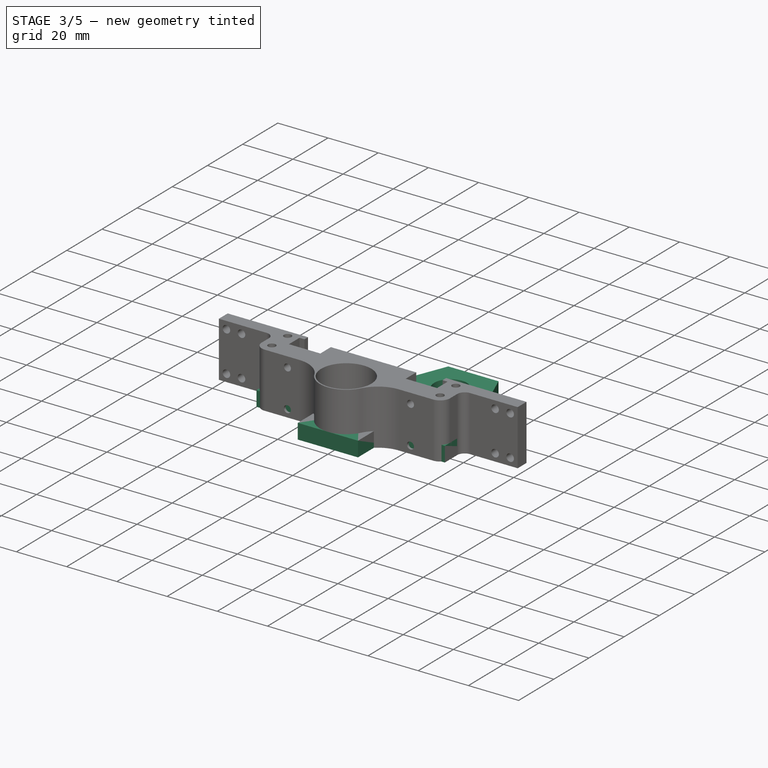
[diagram: stage 3 of 5 — iso view after this stage's code; geometry added in this stage tinted green]
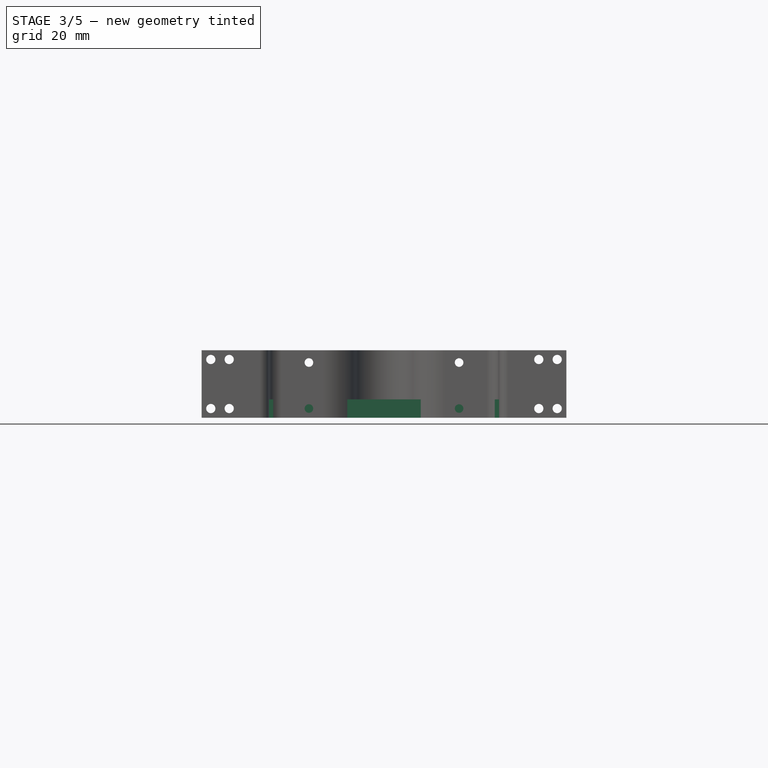
[diagram: stage 3 of 5 — front view after this stage's code; geometry added in this stage tinted green]
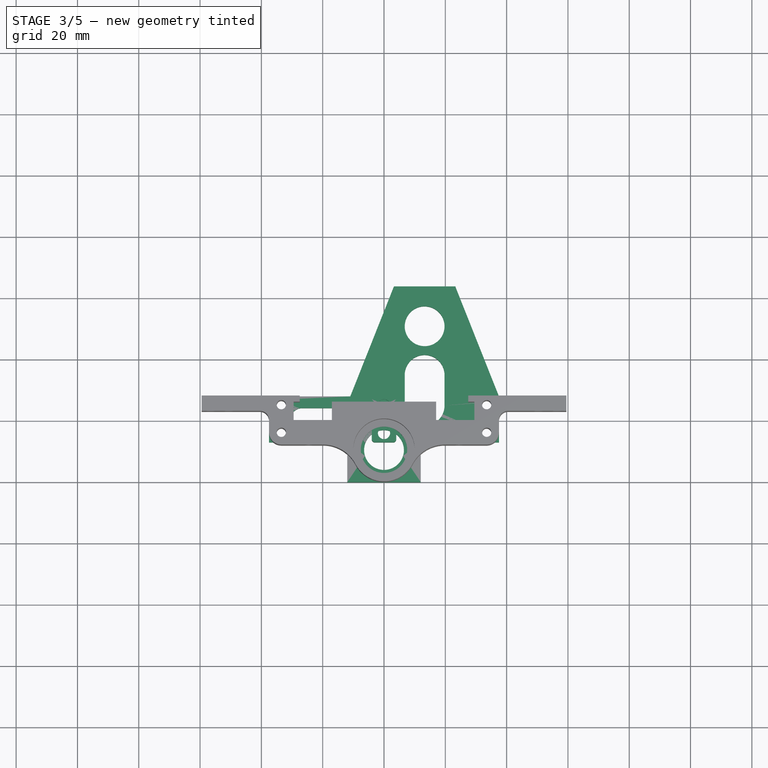
[diagram: stage 3 of 5 — top view after this stage's code; geometry added in this stage tinted green]
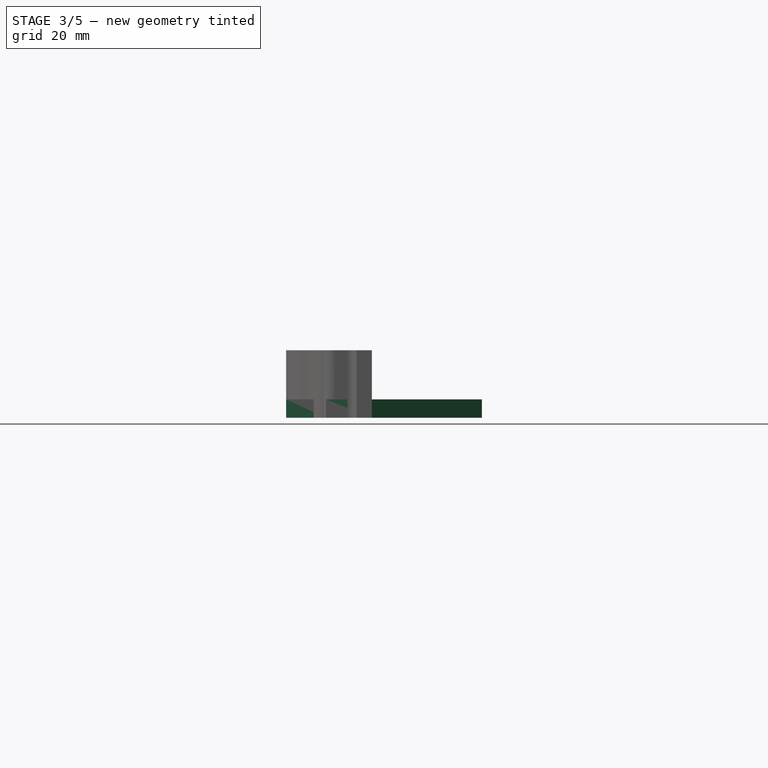
[diagram: stage 3 of 5 — right view after this stage's code; geometry added in this stage tinted green]
FEATURE [Sketcher::SketchObject] Sketch015
  FullyConstrained = false
  MapMode = 5
  Support = -> [XY_Plane003]
  expr: Constraints[10] = Spreadsheet002.bearingInnerR
  expr: Constraints[11] = Spreadsheet002.middleToTop
  expr: Constraints[16] = Spreadsheet002.screwFront4W
  expr: Constraints[17] = Spreadsheet002.screwFront4W
  expr: Constraints[18] = Spreadsheet002.screwFront4Top
  expr: Constraints[19] = Spreadsheet002.screwFront4BottomY
  expr: Constraints[31] = Spreadsheet002.screwR
  expr: Constraints[33] = Spreadsheet002.engineShaftRHTo0
  expr: Constraints[34] = Spreadsheet002.engineShaftRW
  expr: Constraints[40] = Spreadsheet002.engineShaftRHTo0 + 5
  expr: Constraints[41] = Spreadsheet002.sideH
  expr: Constraints[5] = Spreadsheet002.totalWidth / 2
  expr: Constraints[6] = Spreadsheet002.totalWidth
  expr: Constraints[7] = Spreadsheet002.sideH
  expr: Constraints[9] = Spreadsheet002.toLowerGearDist + Spreadsheet002.topVertGrapH - Spreadsheet002.middleToTop
  sketch-geometry (25):
    g0: LineSegment StartX=37.5 StartY=8 StartZ=0 EndX=37.5 EndY=-20 EndZ=0
    g1: LineSegment StartX=37.5 StartY=-20 StartZ=0 EndX=-37.5 EndY=-20 EndZ=0
    g2: LineSegment StartX=-37.5 StartY=-20 StartZ=0 EndX=-37.5 EndY=8 EndZ=0
    g3: Circle CenterX=0 CenterY=-9.5 CenterZ=0 NormalX=0 NormalY=0 NormalZ=1 AngleXU=0 Radius=6.5
    g4: LineSegment StartX=-33.5 StartY=5 StartZ=0 EndX=33.5 EndY=5 EndZ=0
    g5: LineSegment StartX=-33.5 StartY=-4 StartZ=0 EndX=33.5 EndY=-4 EndZ=0
    g6: LineSegment StartX=-33.5 StartY=5 StartZ=0 EndX=-33.5 EndY=-4 EndZ=0
    g7: LineSegment StartX=33.5 StartY=5 StartZ=0 EndX=33.5 EndY=-4 EndZ=0
    g8: Circle CenterX=-33.5 CenterY=5 CenterZ=0 NormalX=0 NormalY=0 NormalZ=1 AngleXU=0 Radius=2
    g9: Circle CenterX=-33.5 CenterY=-4 CenterZ=0 NormalX=0 NormalY=0 NormalZ=1 AngleXU=0 Radius=2
    g10: Circle CenterX=33.5 CenterY=5 CenterZ=0 NormalX=0 NormalY=0 NormalZ=1 AngleXU=0 Radius=2
    g11: Circle CenterX=33.5 CenterY=-4 CenterZ=0 NormalX=0 NormalY=0 NormalZ=1 AngleXU=0 Radius=2
    g12: Circle CenterX=13.25 CenterY=30.88 CenterZ=0 NormalX=0 NormalY=0 NormalZ=1 AngleXU=0 Radius=6.5
    g13: LineSegment StartX=37.5 StartY=8 StartZ=0 EndX=23.25 EndY=43.88 EndZ=0
    g14: LineSegment StartX=23.25 StartY=43.88 StartZ=0 EndX=3.25 EndY=43.88 EndZ=0
    g15: LineSegment StartX=-37.5 StartY=8 StartZ=0 EndX=-11 EndY=8 EndZ=0
    g16: LineSegment StartX=3.25 StartY=43.88 StartZ=0 EndX=-11 EndY=8 EndZ=0
    g17: ArcOfCircle CenterX=13.25 CenterY=15 CenterZ=0 NormalX=0 NormalY=0 NormalZ=1 AngleXU=0 Radius=6.5 StartAngle=0 EndAngle=3.14159
    g18: ArcOfCircle CenterX=13.25 CenterY=5 CenterZ=0 NormalX=0 NormalY=0 NormalZ=1 AngleXU=0 Radius=6.5 StartAngle=3.14159 EndAngle=6.28319
    g19: LineSegment StartX=6.75 StartY=15 StartZ=0 EndX=6.75 EndY=5 EndZ=0
    g20: LineSegment StartX=19.75 StartY=5 StartZ=0 EndX=19.75 EndY=15 EndZ=0
    g21: ArcOfCircle CenterX=-26.7831 CenterY=0.612924 CenterZ=0 NormalX=0 NormalY=0 NormalZ=1 AngleXU=0 Radius=3.56856 StartAngle=1.5708 EndAngle=4.71239
    g22: ArcOfCircle CenterX=-9.0822 CenterY=0.612924 CenterZ=0 NormalX=0 NormalY=0 NormalZ=1 AngleXU=0 Radius=3.56856 StartAngle=4.71239 EndAngle=7.85398
    g23: LineSegment StartX=-26.7831 StartY=-2.95563 StartZ=0 EndX=-9.0822 EndY=-2.95563 EndZ=0
    g24: LineSegment StartX=-9.0822 StartY=4.18148 StartZ=0 EndX=-26.7831 EndY=4.18148 EndZ=0
  constraints (64):
    c: Coincident(g0,g1)
    c: Coincident(g1,g2)
    c: Horizontal(g1)
    c: Vertical(g0)
    c: Vertical(g2)
    c: DistanceX(g2,g-1) = 37.5
    c: DistanceX(g2,g0) = 75
    c: DistanceY(g2,g2) = 28
    c: PointOnObject(g3,g-2)
    c: DistanceY(g3,g-1) = 9.5
    c: Radius(g3) = 6.5
    c: DistanceY(g-1,g2) = 8
    c: Horizontal(g4)
    c: Horizontal(g5)
    c: Vertical(g6)
    c: Vertical(g7)
    c: DistanceX(g-1,g7) = 33.5
    c: DistanceX(g6,g-1) = 33.5
    c: DistanceY(g-1,g4) = 5
    c: DistanceY(g5,g-1) = 4
    c: PointOnObject(g9,g5)
    c: PointOnObject(g9,g6)
    c: Coincident(g4,g6)
    c: Coincident(g8,g4)
    c: Coincident(g4,g7)
    c: Coincident(g5,g7)
    c: Coincident(g10,g4)
    c: Coincident(g11,g5)
    c: Equal(g10,g11)
    c: Equal(g11,g9)
    c: Equal(g9,g8)
    c: Radius(g11) = 2
    c: Coincident(g5,g6)
    c: DistanceY(g-1,g12) = 30.88
    c: DistanceX(g-1,g12) = 13.25
    c: Equal(g12,g3)
    c: Coincident(g14,g13)
    c: Horizontal(g14)
    c: DistanceX(g12,g13) = 10
    c: DistanceX(g14,g12) = 10
    c: DistanceY(g0,g13) = 35.88
    c: DistanceY(g0,g0) = 28
    c: Coincident(g13,g0)
    c: Coincident(g15,g2)
    c: Horizontal(g15)
    c: Coincident(g16,g14)
    c: Coincident(g16,g15)
    c: Equal(g13,g16)
    c: Tangent(g17,g19) = -1.5708
    c: Tangent(g19,g18) = -1.5708
    c: Tangent(g18,g20) = -1.5708
    c: Tangent(g20,g17) = -1.5708
    c: Equal(g17,g18)
    c: Vertical(g19)
    c: Equal(g17,g12)
    c: DistanceX(g12,g17) = 0
    c: DistanceY(g-1,g17) = 15
    c: PointOnObject(g18,g4)
    c: Tangent(g21,g23) = -1.5708
    c: Tangent(g23,g22) = -1.5708
    c: Tangent(g22,g24) = -1.5708
    c: Tangent(g24,g21) = -1.5708
    c: Equal(g21,g22)
    c: Horizontal(g23)
FEATURE [PartDesign::Pad] Pad004
  Direction = (0,0,1)
  Length = 6
  Length2 = 10
  Profile = -> Sketch015
  ReferenceAxis = -> Sketch015 [N_Axis]
  Type = 0
FEATURE [Sketcher::SketchObject] Sketch016
  FullyConstrained = true
  MapMode = 5
  Support = -> [XY_Plane003]
  expr: Constraints[16] = Spreadsheet002.bottomRemoveY
  expr: Constraints[17] = Spreadsheet002.bottomRemoveY
  expr: Constraints[18] = Spreadsheet002.bottomRemoteXW
  expr: Constraints[20] = Spreadsheet002.bottomRemoveX
  expr: Constraints[21] = Spreadsheet002.bottomRemoveX
  expr: Constraints[22] = Spreadsheet002.bottomHeight
  sketch-geometry (8):
    g0: LineSegment StartX=-50 StartY=-7 StartZ=0 EndX=-12 EndY=-7 EndZ=0
    g1: LineSegment StartX=-12 StartY=-7 StartZ=0 EndX=-12 EndY=-20 EndZ=0
    g2: LineSegment StartX=-12 StartY=-20 StartZ=0 EndX=-50 EndY=-20 EndZ=0
    g3: LineSegment StartX=-50 StartY=-20 StartZ=0 EndX=-50 EndY=-7 EndZ=0
    g4: LineSegment StartX=12 StartY=-7 StartZ=0 EndX=50 EndY=-7 EndZ=0
    g5: LineSegment StartX=50 StartY=-7 StartZ=0 EndX=50 EndY=-20 EndZ=0
    g6: LineSegment StartX=50 StartY=-20 StartZ=0 EndX=12 EndY=-20 EndZ=0
    g7: LineSegment StartX=12 StartY=-20 StartZ=0 EndX=12 EndY=-7 EndZ=0
  constraints (24):
    c: Coincident(g0,g1)
    c: Coincident(g1,g2)
    c: Coincident(g2,g3)
    c: Coincident(g3,g0)
    c: Horizontal(g0)
    c: Horizontal(g2)
    c: Vertical(g1)
    c: Vertical(g3)
    c: Coincident(g4,g5)
    c: Coincident(g5,g6)
    c: Coincident(g6,g7)
    c: Coincident(g7,g4)
    c: Horizontal(g4)
    c: Horizontal(g6)
    c: Vertical(g5)
    c: Vertical(g7)
    c: DistanceY(g0,g-1) = 7
    c: DistanceY(g4,g-1) = 7
    c: DistanceX(g-1,g4) = 50
    c: Equal(g4,g0)
    c: DistanceX(g0,g-1) = 12
    c: DistanceX(g-1,g4) = 12
    c: DistanceY(g2,g-1) = 20
    c: Equal(g5,g3)
FEATURE [PartDesign::Pocket] Pocket012
  BaseFeature = -> Pad004
  Direction = (0,0,-1)
  Length = 5
  Length2 = 5
  Profile = -> Sketch016
  ReferenceAxis = -> Sketch016 [N_Axis]
  Reversed = true
  Type = 1
FEATURE [PartDesign::Body] Body003
  Group = -> [Sketch015,Pad004,Sketch016,Pocket012,DatumLine,DatumLine001,Sketch017,Pocket013]
  Origin = -> Origin003
  Tip = -> Pocket013
FEATURE [Sketcher::SketchObject] Sketch018
  FullyConstrained = true
  MapMode = 5
  Support = -> [XY_Plane004]
  expr: Constraints[13] = Spreadsheet002.screwR
  expr: Constraints[14] = Spreadsheet002.screwFront4Top
  expr: Constraints[15] = Spreadsheet002.screwFront4BottomY
  expr: Constraints[16] = Spreadsheet002.frontScrewToSideX
  expr: Constraints[17] = Spreadsheet002.frontScrewToSideX
  expr: Constraints[8] = Spreadsheet002.middleToTop
  expr: Constraints[9] = Spreadsheet002.bottomRemoveY
  sketch-geometry (6):
    g0: LineSegment StartX=-4 StartY=8 StartZ=0 EndX=4 EndY=8 EndZ=0
    g1: LineSegment StartX=4 StartY=8 StartZ=0 EndX=4 EndY=-7 EndZ=0
    g2: LineSegment StartX=4 StartY=-7 StartZ=0 EndX=-4 EndY=-7 EndZ=0
    g3: LineSegment StartX=-4 StartY=-7 StartZ=0 EndX=-4 EndY=8 EndZ=0
    g4: Circle CenterX=0 CenterY=5 CenterZ=0 NormalX=0 NormalY=0 NormalZ=1 AngleXU=0 Radius=2
    g5: Circle CenterX=0 CenterY=-4 CenterZ=0 NormalX=0 NormalY=0 NormalZ=1 AngleXU=0 Radius=2
  constraints (18):
    c: Coincident(g0,g1)
    c: Coincident(g1,g2)
    c: Coincident(g2,g3)
    c: Coincident(g3,g0)
    c: Horizontal(g0)
    c: Horizontal(g2)
    c: Vertical(g1)
    c: Vertical(g3)
    c: DistanceY(g-1,g0) = 8
    c: DistanceY(g2,g-1) = 7
    c: PointOnObject(g4,g-2)
    c: PointOnObject(g5,g-2)
    c: Equal(g4,g5)
    c: Radius(g4) = 2
    c: DistanceY(g-1,g4) = 5
    c: DistanceY(g5,g-1) = 4
    c: DistanceX(g0,g-1) = 4
    c: DistanceX(g-1,g0) = 4
FEATURE [PartDesign::Pad] Pad005
  Direction = (0,0,1)
  Length = 9
  Length2 = 10
  Profile = -> Sketch018
  ReferenceAxis = -> Sketch018 [N_Axis]
  Type = 0
FEATURE [PartDesign::Fillet] Fillet001
  Base = -> Pad005 [Edge2,Edge5,Edge1,Edge8]
  BaseFeature = -> Pad005
  Radius = 1
  SupportTransform = false
  UseAllEdges = false
FEATURE [PartDesign::Pad] Pad006
  BaseFeature = -> Pocket015
  Direction = (0,0,1)
  Length = 1
  Length2 = 10
  Profile = -> Sketch021
  ReferenceAxis = -> Sketch021 [N_Axis]
  Type = 0
FEATURE [PartDesign::Body] Body006  label="Body006BottomSupportLeft"
  BaseFeature = -> Body002
  Group = -> [Clone,Sketch020,Pocket015,Sketch021,Pad006]
  Origin = -> Origin006
  Tip = -> Pad006
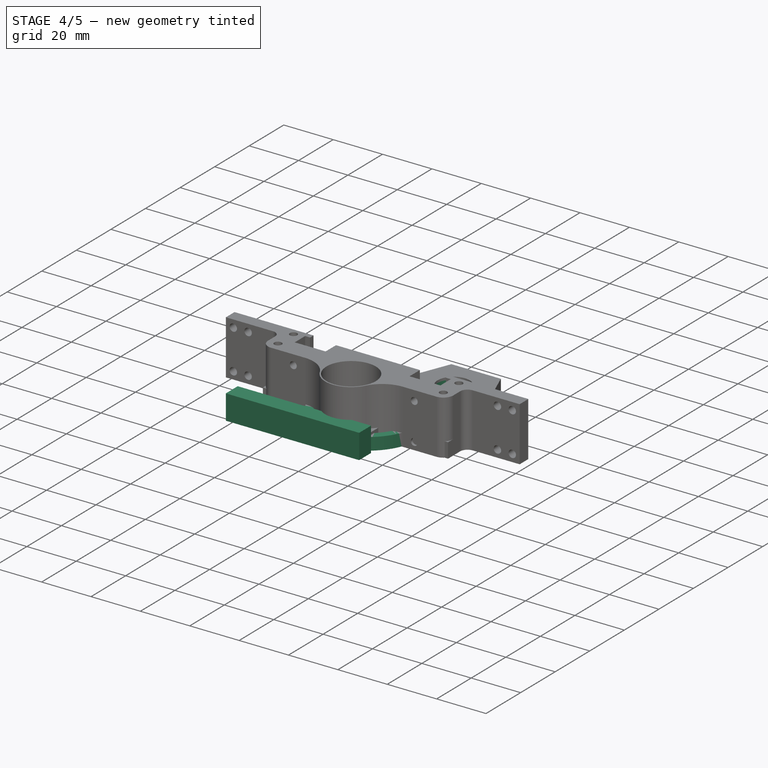
[diagram: stage 4 of 5 — iso view after this stage's code; geometry added in this stage tinted green]
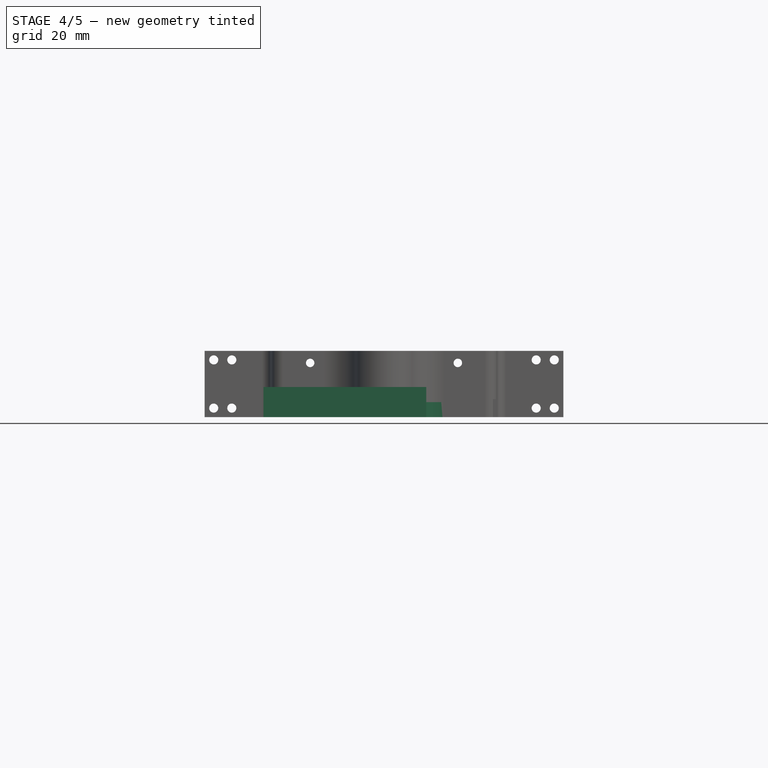
[diagram: stage 4 of 5 — front view after this stage's code; geometry added in this stage tinted green]
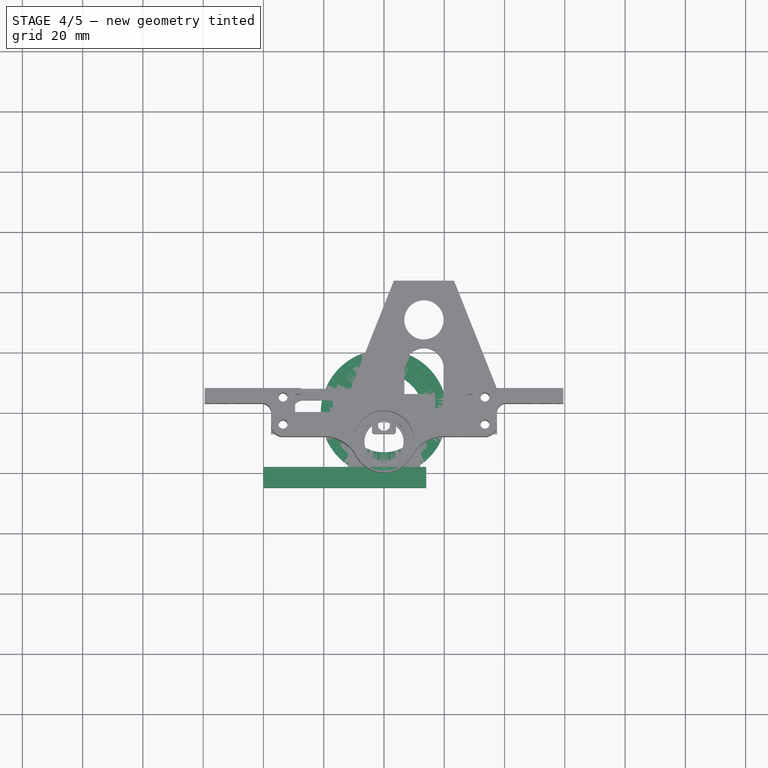
[diagram: stage 4 of 5 — top view after this stage's code; geometry added in this stage tinted green]
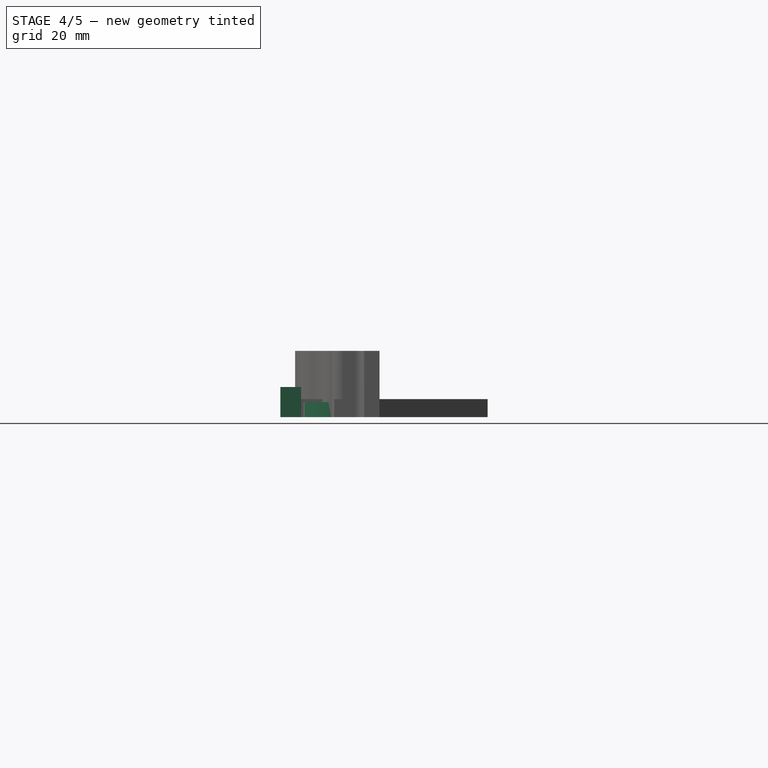
[diagram: stage 4 of 5 — right view after this stage's code; geometry added in this stage tinted green]
FEATURE [Sketcher::SketchObject] Sketch
  FullyConstrained = false
  MapMode = 5
  Support = -> [XY_Plane]
  expr: Constraints[10] = Spreadsheet.screwArmWidth / 2
  expr: Constraints[21] = Spreadsheet.motorCenterSpacingR
  expr: Constraints[24] = Spreadsheet.screwArmWidth / 2
  expr: Constraints[25] = Spreadsheet.screwArmWidth / 2
  expr: Constraints[2] = Spreadsheet.motorWrapR
  expr: Constraints[3] = Spreadsheet.motorInnerR
  expr: Constraints[6] = Spreadsheet.motorScrewHoleR
  expr: Constraints[7] = Spreadsheet.motorCenterToScrew
  expr: Constraints[8] = Spreadsheet.motorCenterToScrew
  expr: Constraints[9] = Spreadsheet.screwArmWidth
  sketch-geometry (11):
    g0: Circle CenterX=0 CenterY=0 CenterZ=0 NormalX=0 NormalY=0 NormalZ=1 AngleXU=0 Radius=21
    g1: ArcOfCircle CenterX=0 CenterY=0 CenterZ=0 NormalX=0 NormalY=0 NormalZ=1 AngleXU=0 Radius=13 StartAngle=3.49506 EndAngle=5.92972
    g2: Circle CenterX=12.5 CenterY=0 CenterZ=0 NormalX=0 NormalY=0 NormalZ=1 AngleXU=0 Radius=1.5
    g3: Circle CenterX=-12.5 CenterY=0 CenterZ=0 NormalX=0 NormalY=0 NormalZ=1 AngleXU=0 Radius=1.5
    g4: LineSegment StartX=-5.3619 StartY=-4.5 StartZ=0 EndX=-12.1963 EndY=-4.5 EndZ=0
    g5: LineSegment StartX=5.3619 StartY=-4.5 StartZ=0 EndX=12.1963 EndY=-4.5 EndZ=0
    g6: LineSegment StartX=5.3619 StartY=4.5 StartZ=0 EndX=12.1963 EndY=4.5 EndZ=0
    g7: ArcOfCircle CenterX=0 CenterY=0 CenterZ=0 NormalX=0 NormalY=0 NormalZ=1 AngleXU=0 Radius=13 StartAngle=0.353468 EndAngle=2.78812
    g8: ArcOfCircle CenterX=0 CenterY=0 CenterZ=0 NormalX=0 NormalY=0 NormalZ=1 AngleXU=0 Radius=7 StartAngle=2.44337 EndAngle=3.83982
    g9: LineSegment StartX=-12.1963 StartY=4.5 StartZ=0 EndX=-5.3619 EndY=4.5 EndZ=0
    g10: ArcOfCircle CenterX=0 CenterY=0 CenterZ=0 NormalX=0 NormalY=0 NormalZ=1 AngleXU=0 Radius=7 StartAngle=5.58496 EndAngle=6.98141
  constraints (32):
    c: Coincident(g0,g-1)
    c: Coincident(g1,g0)
    c: Radius(g0) = 21
    c: Radius(g1) = 13
    c: PointOnObject(g2,g-1)
    c: PointOnObject(g3,g-1)
    c: Radius(g2) = 1.5
    c: DistanceX(g0,g2) = 12.5
    c: DistanceX(g3,g0) = 12.5
    c: DistanceY(g5,g6) = 9
    c: DistanceY(g0,g6) = 4.5
    c: Horizontal(g4)
    c: Horizontal(g5)
    c: PointOnObject(g6,g1)
    c: Horizontal(g6)
    c: Coincident(g1,g4)
    c: Equal(g1,g7)
    c: Coincident(g1,g5)
    c: Coincident(g1,g7)
    c: PointOnObject(g7,g6)
    c: Coincident(g8,g0)
    c: Radius(g8) = 7
    c: Coincident(g9,g7)
    c: Horizontal(g9)
    c: DistanceY(g0,g7) = 4.5
    c: DistanceY(g1,g0) = 4.5
    c: Coincident(g10,g6)
    c: Coincident(g8,g9)
    c: Equal(g8,g10)
    c: Coincident(g8,g4)
    c: Coincident(g10,g5)
    c: Coincident(g8,g10)
FEATURE [Spreadsheet::Sheet] Spreadsheet
  cells = A2=motorR; B2(motorR)==36 / 2; A3=motorScrewHoleR; B3(motorScrewHoleR)=1.5; A4=motorCenterToScrew; B4(motorCenterToScrew)==25 / 2; A5=screwArmWidth; B5(screwArmWidth)=9; A6=motorInnerR; B6(motorInnerR)==B2 - 5; A7=motorCenterSpacingR; B7(motorCenterSpacingR)=7; A8=motorWrapWidth; B8=3; A9=motorWrapR; B9(motorWrapR)==B2 + B8; A10=TransmissionHoleHeight; B10(TransmissionHoleHeight)=24.88; A12=screwBlockWidth; B12=5; A13=shaftBlockWidth; B13=18; A14=motorCenterToSide1; B14(motorCenterToSide1)==B13 / 2 + B12; A15=transmissionCenterGap; B15=8; A16=motorCenterToSide2; B16(motorCenterToSide2)==B13 / 2 + B15 + B13 + B12; A17=supportBlockPad; B17(supportBlockPad)=10; A19=connectorExtra; B19(connectorExtra)=22; A20=connectorWallThickness; B20(connectorWallThickness)=5; A22=connectorToEdge; B22(connectorToEdge)==Spreadsheet002.innerMaxWidth / 2 - Spreadsheet002.topEdgeGrapWidth + Spreadsheet002.topGrapW + connectorExtra; A23=connectorScrewHDist; B23(connectorScrewHDist)==Spreadsheet002.screwToSide * 2; A24=connectorToScrewOuter; B24(connectorToScrewOuter)==connectorToEdge - Spreadsheet002.screwToSide; A25=edgeConnectorScrewVDist; B25(edgeConnectorScrewVDist)==Spreadsheet002.totalPad - Spreadsheet002.screwToSide * 2
FEATURE [PartDesign::Pad] Pad
  Direction = (0,0,1)
  Length = 5
  Length2 = 10
  Profile = -> Sketch
  ReferenceAxis = -> Sketch [N_Axis]
  Type = 0
FEATURE [Sketcher::SketchObject] Sketch001  label="Sketch001MotorWrap"
  AttachmentOffset = pos=(0,0,2) rot=(0,0,1;0rad)
  FullyConstrained = true
  MapMode = 5
  Placement = pos=(0,0,2) rot=(0,0,1;0rad)
  Support = -> [XY_Plane]
  expr: Constraints[0] = Spreadsheet.motorR
  sketch-geometry (1):
    g0: Circle CenterX=0 CenterY=0 CenterZ=0 NormalX=0 NormalY=0 NormalZ=1 AngleXU=0 Radius=18
  constraints (2):
    c: Radius(g0) = 18
    c: Coincident(g0,g-1)
FEATURE [PartDesign::Pocket] Pocket
  BaseFeature = -> Pad
  Direction = (0,0,-1)
  Length = 5
  Length2 = 5
  Profile = -> Sketch001
  ReferenceAxis = -> Sketch001 [N_Axis]
  Reversed = true
  Type = 0
FEATURE [Sketcher::SketchObject] Sketch002
  FullyConstrained = true
  MapMode = 5
  Support = -> [XY_Plane]
  expr: Constraints[10] = Spreadsheet.motorCenterToSide1
  expr: Constraints[11] = Spreadsheet.motorCenterToSide2
  expr: Constraints[8] = Spreadsheet.motorR
  expr: Constraints[9] = Spreadsheet.TransmissionHoleHeight
  sketch-geometry (4):
    g0: LineSegment StartX=-40 StartY=-18 StartZ=0 EndX=14 EndY=-18 EndZ=0
    g1: LineSegment StartX=14 StartY=-18 StartZ=0 EndX=14 EndY=-24.88 EndZ=0
    g2: LineSegment StartX=14 StartY=-24.88 StartZ=0 EndX=-40 EndY=-24.88 EndZ=0
    g3: LineSegment StartX=-40 StartY=-24.88 StartZ=0 EndX=-40 EndY=-18 EndZ=0
  constraints (12):
    c: Coincident(g0,g1)
    c: Coincident(g1,g2)
    c: Coincident(g2,g3)
    c: Coincident(g3,g0)
    c: Horizontal(g0)
    c: Horizontal(g2)
    c: Vertical(g1)
    c: Vertical(g3)
    c: DistanceY(g0,g-1) = 18
    c: DistanceY(g1,g-1) = 24.88
    c: DistanceX(g-1,g0) = 14
    c: DistanceX(g0,g-1) = 40
FEATURE [PartDesign::Pad] Pad001
  BaseFeature = -> Pocket
  Direction = (0,0,1)
  Length = 10
  Length2 = 10
  Profile = -> Sketch002
  ReferenceAxis = -> Sketch002 [N_Axis]
  Type = 0
  expr: Length = Spreadsheet.supportBlockPad
FEATURE [PartDesign::Line] DatumLine
  AttacherType = Attacher::AttachEngineLine
  Length = 20
  MapMode = 19
  Placement = pos=(13.25,30.88,0) rot=(0,0,1;0rad)
  ResizeMode = 0
  Support = -> [Pad004]
FEATURE [PartDesign::Line] DatumLine001
  AttacherType = Attacher::AttachEngineLine
  Length = 20
  MapMode = 19
  Placement = pos=(0,-9.5,0) rot=(0,0,1;0rad)
  ResizeMode = 0
  Support = -> [Pad004]
FEATURE [Sketcher::SketchObject] Sketch017
  ExternalGeometry = -> [DatumLine,DatumLine001]
  FullyConstrained = true
  MapMode = 5
  Support = -> [XY_Plane003]
  expr: Constraints[2] = Spreadsheet002.bearingR
  expr: Constraints[3] = Spreadsheet002.bearingR
  sketch-geometry (2):
    g0: Circle CenterX=13.25 CenterY=30.88 CenterZ=0 NormalX=0 NormalY=0 NormalZ=1 AngleXU=0 Radius=7.56
    g1: Circle CenterX=0 CenterY=-9.5 CenterZ=0 NormalX=0 NormalY=0 NormalZ=1 AngleXU=0 Radius=7.56
  constraints (4):
    c: Coincident(g0,g-3)
    c: Coincident(g1,g-4)
    c: Radius(g0) = 7.56
    c: Radius(g1) = 7.56
FEATURE [PartDesign::Pocket] Pocket013
  BaseFeature = -> Pocket012
  Direction = (0,0,-1)
  Length = 5
  Length2 = 5
  Profile = -> Sketch017
  ReferenceAxis = -> Sketch017 [N_Axis]
  Reversed = true
  Type = 0
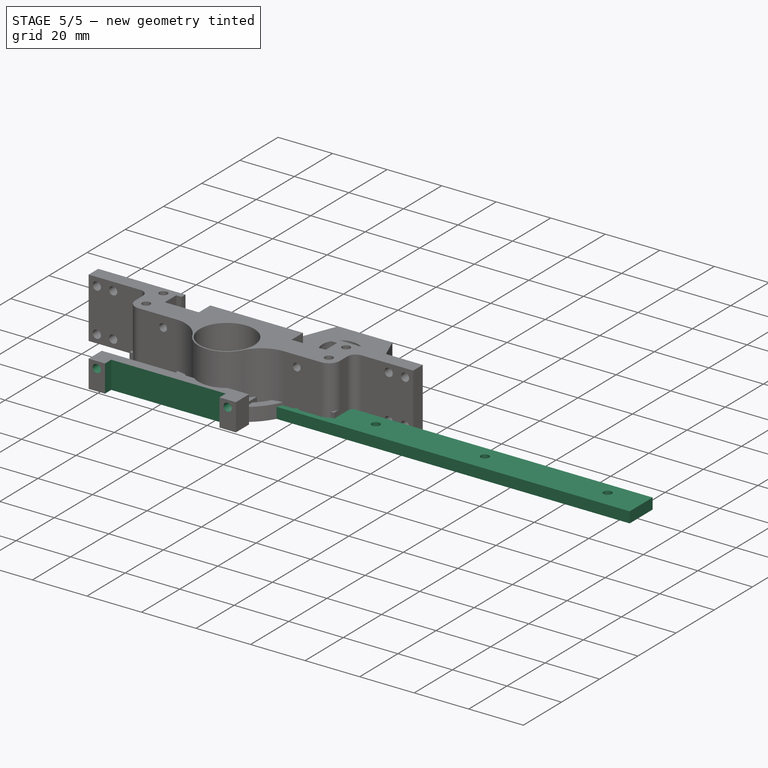
[diagram: stage 5 of 5 — iso view after this stage's code; geometry added in this stage tinted green]
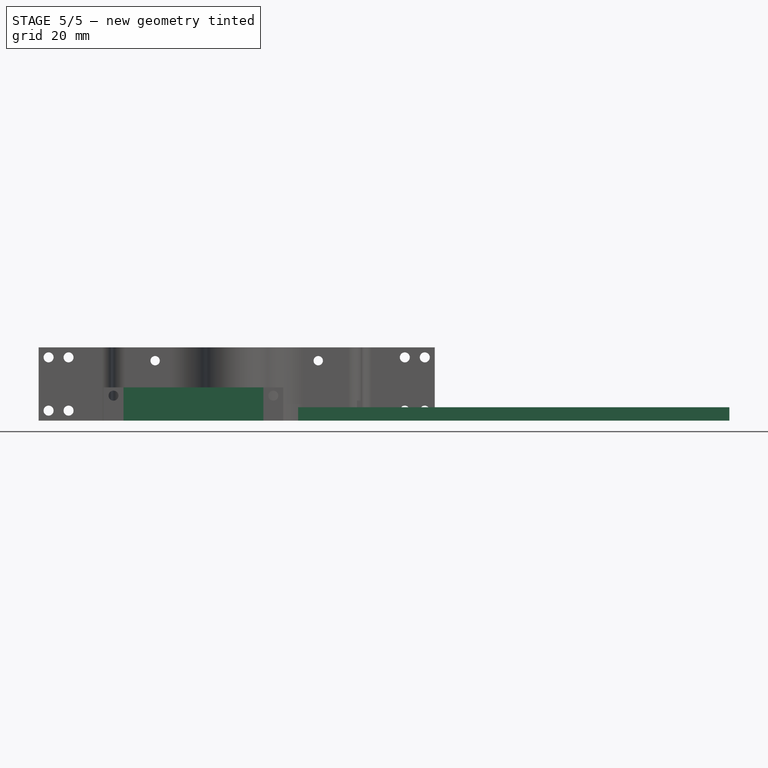
[diagram: stage 5 of 5 — front view after this stage's code; geometry added in this stage tinted green]
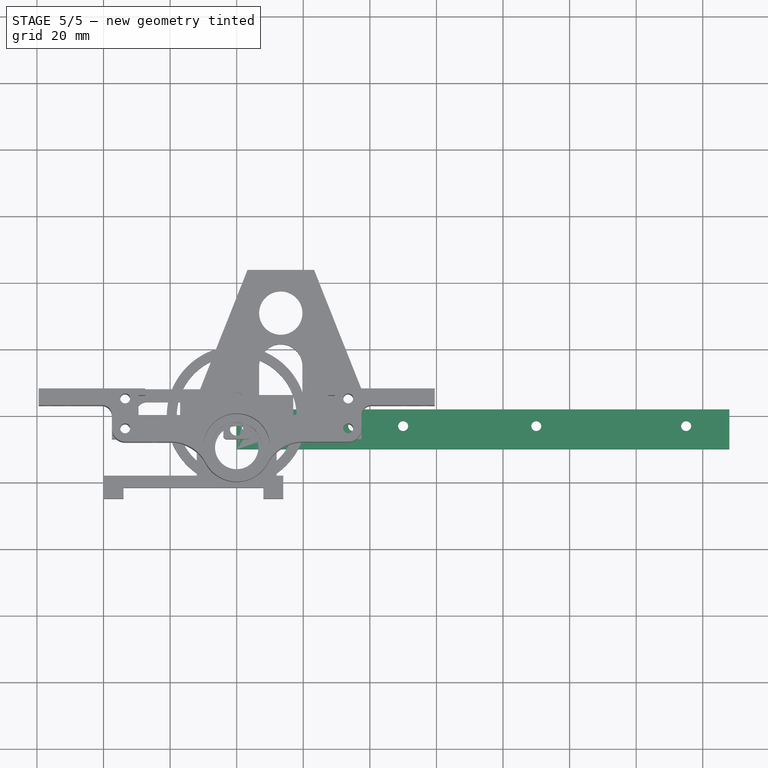
[diagram: stage 5 of 5 — top view after this stage's code; geometry added in this stage tinted green]
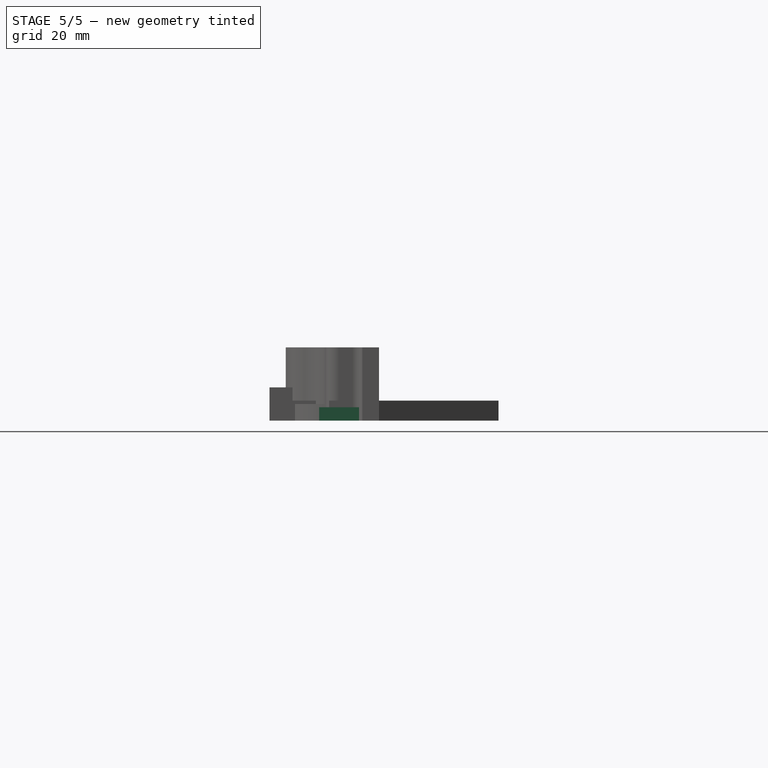
[diagram: stage 5 of 5 — right view after this stage's code; geometry added in this stage tinted green]
FEATURE [Sketcher::SketchObject] Sketch003
  ExternalGeometry = -> [Pad001]
  FullyConstrained = false
  MapMode = 5
  Placement = pos=(0,0,10) rot=(0,0,1;0rad)
  Support = -> [Pad001]
  sketch-geometry (4):
    g0: LineSegment StartX=-34 StartY=-24.88 StartZ=0 EndX=8 EndY=-24.88 EndZ=0
    g1: LineSegment StartX=8 StartY=-24.88 StartZ=0 EndX=8 EndY=-21.599 EndZ=0
    g2: LineSegment StartX=8 StartY=-21.599 StartZ=0 EndX=-34 EndY=-21.599 EndZ=0
    g3: LineSegment StartX=-34 StartY=-21.599 StartZ=0 EndX=-34 EndY=-24.88 EndZ=0
  constraints (14):
    c: Coincident(g0,g1)
    c: Coincident(g1,g2)
    c: Coincident(g2,g3)
    c: Coincident(g3,g0)
    c: Horizontal(g0)
    c: Horizontal(g2)
    c: Vertical(g1)
    c: Vertical(g3)
    c: PointOnObject(g0,g-3)
    c: DistanceX(g-3,g-3) = 54
    c: DistanceX(g-3,g-3) = 54
    c: DistanceX(g-3,g0) = 6
    c: DistanceX(g-3,g-3) = 54
    c: DistanceX(g0,g-3) = 6
FEATURE [PartDesign::Pocket] Pocket001
  BaseFeature = -> Pad001
  Direction = (0,0,-1)
  Length = 5
  Length2 = 5
  Profile = -> Sketch003
  ReferenceAxis = -> Sketch003 [N_Axis]
  Type = 2
FEATURE [Sketcher::SketchObject] Sketch004
  ExternalGeometry = -> [Pocket001]
  FullyConstrained = true
  MapMode = 5
  Placement = pos=(0,-24.88,0) rot=(1,0,0;1.5708rad)
  Support = -> [Pocket001]
  expr: Constraints[4] = Spreadsheet.motorScrewHoleR
  expr: Constraints[5] = Spreadsheet.motorScrewHoleR
  sketch-geometry (2):
    g0: Circle CenterX=-37 CenterY=7.5 CenterZ=0 NormalX=0 NormalY=0 NormalZ=1 AngleXU=0 Radius=1.5
    g1: Circle CenterX=11 CenterY=7.5 CenterZ=0 NormalX=0 NormalY=0 NormalZ=1 AngleXU=0 Radius=1.5
  constraints (6):
    c: DistanceY(g-1,g0) = 7.5
    c: DistanceY(g-1,g1) = 7.5
    c: DistanceX(g-4,g0) = 3
    c: DistanceX(g1,g-5) = 3
    c: Radius(g0) = 1.5
    c: Radius(g1) = 1.5
FEATURE [PartDesign::Pocket] Pocket002  label="Pocket002FrontPlate"
  BaseFeature = -> Pocket001
  Direction = (0,1,-2e-16)
  Length = 5
  Length2 = 5
  Profile = -> Sketch004
  ReferenceAxis = -> Sketch004 [N_Axis]
  Type = 1
FEATURE [Spreadsheet::Sheet] Spreadsheet001
  cells = A1=bar1; B1=6; A2=space1; B2=24; A3=bar2; B3=10; A4=space2; B4=7; A5=aboveScrewX1; B5(aboveScrewX1)=2; D5=mountOutsideToScrewH; E5(mountOutsideToScrewH)==B5 + B6; A6=screwX1; B6(screwX1)==B1 / 2; A7=screwX2; B7(screwX2)==B1 + B2 + B3 / 2; A8=screwX3; B8(screwX3)==B1 + B2 + B3 + B4 + B1 / 2; A9=screwX11; B9(screwX11)==B1 + B4 + B3 / 2; A10=motorRodSpacing; B10=33; A11=motorMountScrewX; B11(motorMountScrewX)=7; A12=screwX4; B12(screwX4)==B8 + B10 + B11; A13=totalWidth; B13(totalWidth)==B12 + 5 + 53
FEATURE [Sketcher::SketchObject] Sketch005
  FullyConstrained = false
  MapMode = 5
  Support = -> [XY_Plane001]
  expr: Constraints[10] = Spreadsheet001.aboveScrewX1
  expr: Constraints[12] = Spreadsheet001.screwX1
  expr: Constraints[13] = Spreadsheet001.totalWidth
  expr: Constraints[18] = Spreadsheet001.screwX4
  expr: Constraints[19] = Spreadsheet001.screwX3
  expr: Constraints[20] = Spreadsheet001.screwX2
  expr: Constraints[21] = Spreadsheet001.screwX1
  expr: Constraints[22] = Spreadsheet.motorScrewHoleR
  expr: Constraints[23] = Spreadsheet.motorScrewHoleR
  expr: Constraints[24] = Spreadsheet.motorScrewHoleR
  expr: Constraints[25] = Spreadsheet.motorScrewHoleR
  expr: Constraints[27] = Spreadsheet.motorScrewHoleR
  expr: Constraints[28] = Spreadsheet001.screwX11
  expr: Constraints[30] = Spreadsheet.motorScrewHoleR
  sketch-geometry (11):
    g0: LineSegment StartX=0 StartY=2 StartZ=0 EndX=148 EndY=2 EndZ=0
    g1: LineSegment StartX=148 StartY=2 StartZ=0 EndX=148 EndY=-10 EndZ=0
    g2: LineSegment StartX=148 StartY=-10 StartZ=0 EndX=0 EndY=-10 EndZ=0
    g3: LineSegment StartX=0 StartY=-10 StartZ=0 EndX=0 EndY=2 EndZ=0
    g4: LineSegment StartX=-6.79242 StartY=-3 StartZ=0 EndX=154.475 EndY=-3 EndZ=0
    g5: Circle CenterX=3 CenterY=-3 CenterZ=0 NormalX=0 NormalY=0 NormalZ=1 AngleXU=0 Radius=1.5
    g6: Circle CenterX=35 CenterY=-3 CenterZ=0 NormalX=0 NormalY=0 NormalZ=1 AngleXU=0 Radius=1.5
    g7: Circle CenterX=50 CenterY=-3 CenterZ=0 NormalX=0 NormalY=0 NormalZ=1 AngleXU=0 Radius=1.5
    g8: Circle CenterX=90 CenterY=-3 CenterZ=0 NormalX=0 NormalY=0 NormalZ=1 AngleXU=0 Radius=1.5
    g9: Circle CenterX=18 CenterY=-3 CenterZ=0 NormalX=0 NormalY=0 NormalZ=1 AngleXU=0 Radius=1.5
    g10: Circle CenterX=135 CenterY=-3 CenterZ=0 NormalX=0 NormalY=0 NormalZ=1 AngleXU=0 Radius=1.5
  constraints (32):
    c: Coincident(g0,g1)
    c: Coincident(g1,g2)
    c: Coincident(g2,g3)
    c: Coincident(g3,g0)
    c: Horizontal(g0)
    c: Horizontal(g2)
    c: Vertical(g1)
    c: Vertical(g3)
    c: PointOnObject(g0,g-2)
    c: DistanceY(g2,g-1) = 10
    c: DistanceY(g-1,g0) = 2
    c: Horizontal(g4)
    c: DistanceY(g4,g-1) = 3
    c: DistanceX(g0,g0) = 148
    c: PointOnObject(g5,g4)
    c: PointOnObject(g6,g4)
    c: PointOnObject(g7,g4)
    c: PointOnObject(g8,g4)
    c: DistanceX(g-1,g8) = 90
    c: DistanceX(g-1,g7) = 50
    c: DistanceX(g-1,g6) = 35
    c: DistanceX(g-1,g5) = 3
    c: Radius(g5) = 1.5
    c: Radius(g6) = 1.5
    c: Radius(g7) = 1.5
    c: Radius(g8) = 1.5
    c: PointOnObject(g9,g4)
    c: Radius(g9) = 1.5
    c: DistanceX(g2,g9) = 18
    c: PointOnObject(g10,g4)
    c: Radius(g10) = 1.5
    c: DistanceX(g8,g10) = 45
FEATURE [PartDesign::Pad] Pad002
  Direction = (0,0,1)
  Length = 4
  Length2 = 10
  Profile = -> Sketch005
  ReferenceAxis = -> Sketch005 [N_Axis]
  Type = 0
FEATURE [PartDesign::Body] Body001  label="connRodTop"
  Group = -> [Sketch005,Pad002]
  Origin = -> Origin001
  Tip = -> Pad002
FEATURE [Sketcher::SketchObject] Sketch006
  FullyConstrained = true
  MapMode = 5
  Support = -> [XY_Plane]
  expr: Constraints[1] = Spreadsheet.motorR
  sketch-geometry (1):
    g0: Circle CenterX=0 CenterY=0 CenterZ=0 NormalX=0 NormalY=0 NormalZ=1 AngleXU=0 Radius=18
  constraints (2):
    c: Coincident(g0,g-1)
    c: Radius(g0) = 18
FEATURE [PartDesign::Pocket] Pocket003  label="Pocket003EndPlate"
  BaseFeature = -> Pocket002
  Direction = (0,0,-1)
  Length = 5
  Length2 = 5
  Profile = -> Sketch006
  ReferenceAxis = -> Sketch006 [N_Axis]
  Reversed = true
  Type = 0
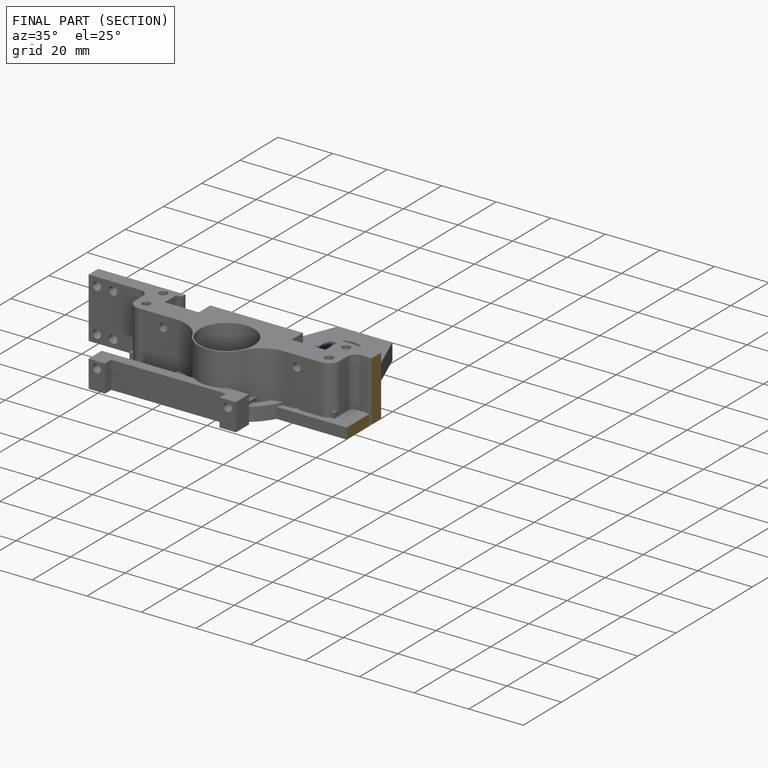
[diagram: finished part — half-section view (interior)]
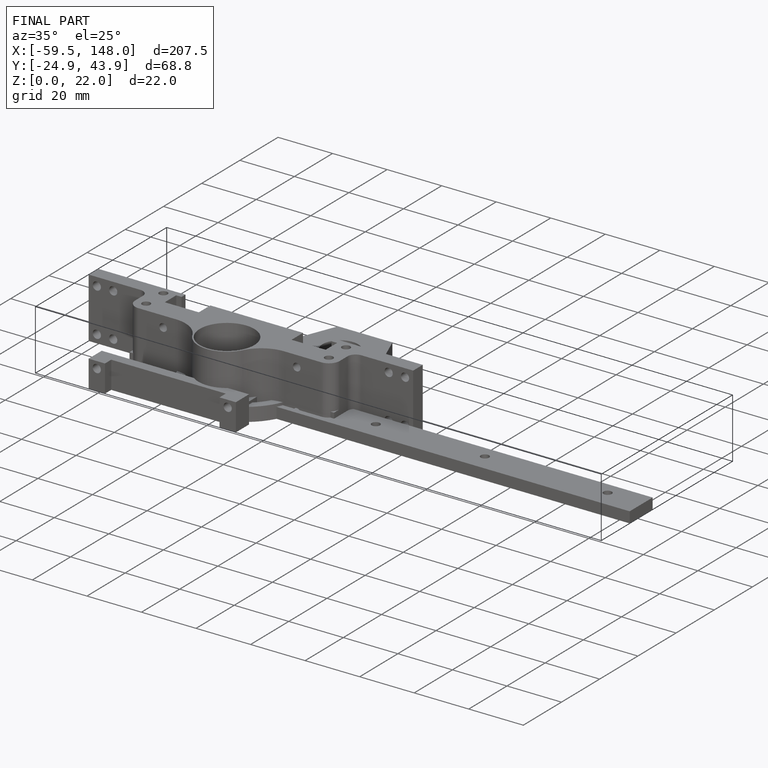
[diagram: finished part — iso view with bounding-box wireframe]
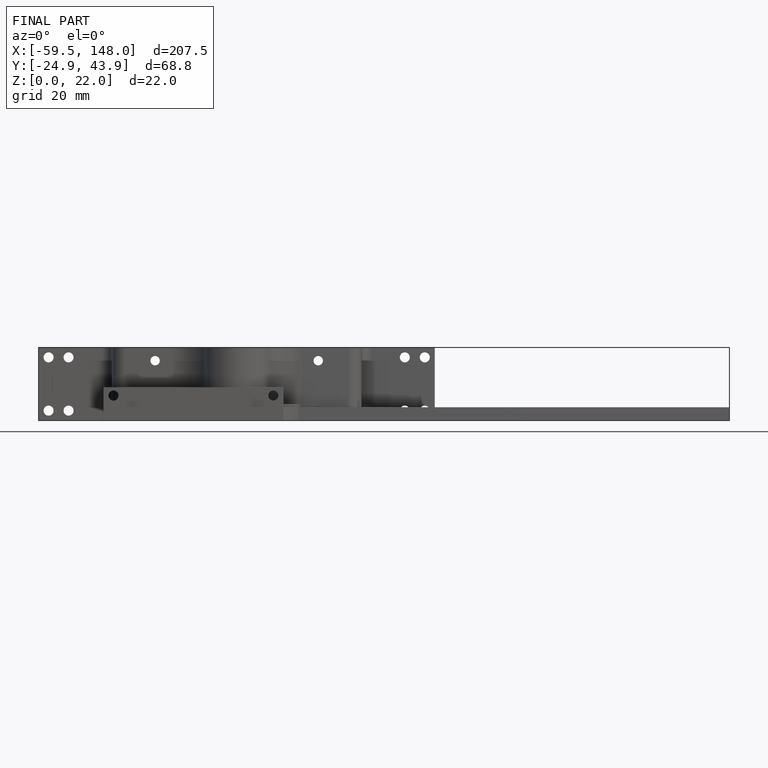
[diagram: finished part — front view with bounding-box wireframe]
